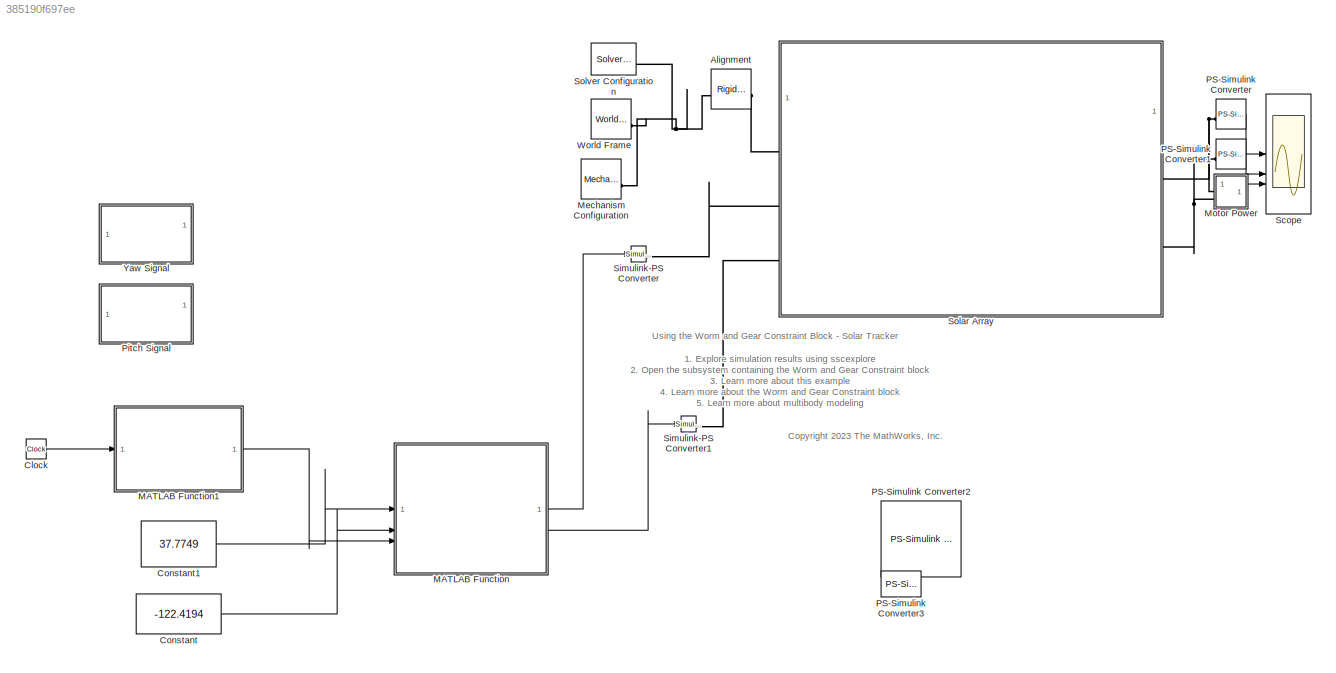
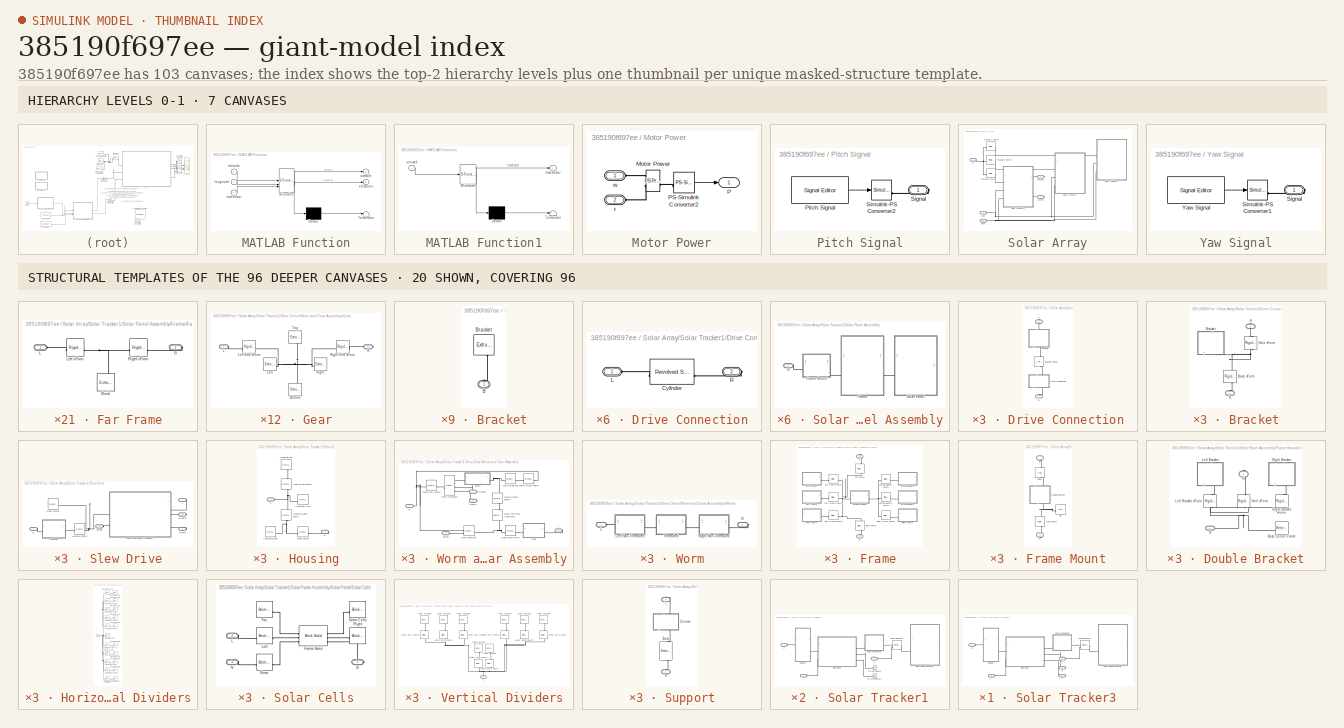
[diagram: thumbnail index - top-2 hierarchy levels (7 canvases) + 20 structural-template representatives of the remaining 96 canvases]
MODEL slx_385190f697ee
KIND model
CONFIG AbsTol = auto
CONFIG EnableMultiTasking = off
CONFIG FixedStep = auto
CONFIG MaxStep = 0.01
CONFIG MinStep = auto
CONFIG PreLoadFcn = addpath(fullfile('WormAndGearConstraintSupport','Data'));\naddpath(fullfile('WormAndGearConstraintSupport','Scripts'));
CONFIG RelTol = 1e-3
CONFIG SampleTimeConstraint = Unconstrained
CONFIG SolverName = ode45
CONFIG StartTime = 0.0
CONFIG StopTime = 20
WORKSPACE source: external: MATLAB File  (data not in archive)
BLOCK [Reference] Alignment  REF=sm_lib/Frames and
Transforms/Rigid
Transform
  SourceBlock = sm_lib/Frames and\nTransforms/Rigid\nTransform
  SourceType = Rigid\nTransform
BLOCK [Clock] Clock
BLOCK [Constant] Constant
  Value = -122.4194
BLOCK [Constant] Constant1
  Value = 37.7749
BLOCK [SubSystem] MATLAB Function
  ErrorFcn = Stateflow.Translate.translate
  PermitHierarchicalResolution = ExplicitOnly
  SFBlockType = MATLAB Function
  TreatAsAtomicUnit = on
BLOCK [Demux] MATLAB Function/ Demux 
  Outputs = 1
BLOCK [S-Function] MATLAB Function/ SFunction 
  EnableBusSupport = on
  FunctionName = sf_sfun
  PortCounts = [3 3]
  SFcnIsStateOwnerBlock = off
  SFunctionDeploymentMode = off
  Tag = Stateflow S-Function 2
BLOCK [Terminator] MATLAB Function/ Terminator 
BLOCK [Outport] MATLAB Function/azimuth
BLOCK [Outport] MATLAB Function/elevation
  Port = 2
BLOCK [Inport] MATLAB Function/latitude
BLOCK [Inport] MATLAB Function/longitude
  Port = 2
BLOCK [Inport] MATLAB Function/timeVector
  Port = 3
BLOCK [SubSystem] MATLAB Function1
  ErrorFcn = Stateflow.Translate.translate
  PermitHierarchicalResolution = ExplicitOnly
  SFBlockType = MATLAB Function
  TreatAsAtomicUnit = on
BLOCK [Demux] MATLAB Function1/ Demux 
  Outputs = 1
BLOCK [S-Function] MATLAB Function1/ SFunction 
  EnableBusSupport = on
  FunctionName = sf_sfun
  PortCounts = [1 2]
  SFcnIsStateOwnerBlock = off
  SFunctionDeploymentMode = off
  Tag = Stateflow S-Function 1
BLOCK [Terminator] MATLAB Function1/ Terminator 
BLOCK [Outport] MATLAB Function1/timeVector
BLOCK [Inport] MATLAB Function1/unused
BLOCK [Reference] Mechanism Configuration  REF=sm_lib/Utilities/Mechanism
Configuration
  SourceBlock = sm_lib/Utilities/Mechanism\nConfiguration
  SourceType = Mechanism\nConfiguration
BLOCK [SubSystem] Motor Power
BLOCK [Reference] Motor Power/Motor Power  REF=fl_ps_legacy_lib/Legacy Physical
Signals/Functions/PS Product
  SourceBlock = fl_ps_legacy_lib/Legacy Physical\nSignals/Functions/PS Product
  SourceType = PS Product
BLOCK [Outport] Motor Power/P
BLOCK [Reference] Motor Power/PS-Simulink Converter2  REF=nesl_utility/PS-Simulink
Converter
  SourceBlock = nesl_utility/PS-Simulink\nConverter
  SourceType = PS-Simulink\nConverter
BLOCK [PMIOPort] Motor Power/t
  Port = 2
  Side = Left
BLOCK [PMIOPort] Motor Power/w
  Side = Left
BLOCK [Reference] PS-Simulink Converter  REF=nesl_utility/PS-Simulink
Converter
  SourceBlock = nesl_utility/PS-Simulink\nConverter
  SourceType = PS-Simulink\nConverter
BLOCK [Reference] PS-Simulink Converter1  REF=nesl_utility/PS-Simulink
Converter
  SourceBlock = nesl_utility/PS-Simulink\nConverter
  SourceType = PS-Simulink\nConverter
BLOCK [Reference] PS-Simulink Converter2  REF=nesl_utility/PS-Simulink
Converter
  SourceBlock = nesl_utility/PS-Simulink\nConverter
  SourceType = PS-Simulink\nConverter
BLOCK [Reference] PS-Simulink Converter3  REF=nesl_utility/PS-Simulink
Converter
  SourceBlock = nesl_utility/PS-Simulink\nConverter
  SourceType = PS-Simulink\nConverter
BLOCK [SubSystem] Pitch Signal
  Commented = on
BLOCK [Reference] Pitch Signal/Pitch Signal  REF=SignalEditorBlockLib/Signal Editor
  SourceBlock = SignalEditorBlockLib/Signal Editor
  SourceType = SignalEditor
  UserDataPersistent = on
BLOCK [PMIOPort] Pitch Signal/Signal
  Side = Right
BLOCK [Reference] Pitch Signal/Simulink-PS Converter2  REF=nesl_utility/Simulink-PS
Converter
  SourceBlock = nesl_utility/Simulink-PS\nConverter
  SourceType = Simulink-PS\nConverter
BLOCK [Scope] Scope
  Floating = off
  NumInputPorts = 3
  ScopeSpecificationString = Simulink.scopes.TimeScopeBlockCfg('CurrentConfiguration', extmgr.ConfigurationSet(extmgr.Configuration('Core','General UI',true),extmgr.Configuration('Core','Source UI',true),extmgr.Configuration('Sources','WiredSimulink',true),extmgr.Configuration('Visuals','Time Domain',true,'SerializedDisplays',{struct('MinYLimReal','-1060.09614','MaxYLimReal','2617.78835','YLabelReal','','MinYLimMag','  0.0000...<+2794ch>
BLOCK [Reference] Simulink-PS Converter  REF=nesl_utility/Simulink-PS
Converter
  SourceBlock = nesl_utility/Simulink-PS\nConverter
  SourceType = Simulink-PS\nConverter
BLOCK [Reference] Simulink-PS Converter1  REF=nesl_utility/Simulink-PS
Converter
  SourceBlock = nesl_utility/Simulink-PS\nConverter
  SourceType = Simulink-PS\nConverter
BLOCK [SubSystem] Solar Array
BLOCK [SubSystem] Solar Array/Solar Tracker1
BLOCK [PMIOPort] Solar Array/Solar Tracker1/B
  Side = Left
BLOCK [SubSystem] Solar Array/Solar Tracker1/Drive Connection
  AncestorBlock = WormAndGearConstraintLibrary/Drive Connection
  LibrarySourceBlock = sm_solar_tracker_lib/Drive Connection
BLOCK [PMIOPort] Solar Array/Solar Tracker1/Drive Connection/B
  NameLocation = left
  Side = Left
BLOCK [SubSystem] Solar Array/Solar Tracker1/Drive Connection/Bracket
  AncestorBlock = WormAndGearConstraintLibrary/Single Bracket
  NameLocation = left
BLOCK [Reference] Solar Array/Solar Tracker1/Drive Connection/Bracket Base  REF=sm_lib/Body Elements/Cylindrical Solid
  NameLocation = left
  SourceBlock = sm_lib/Body Elements/Cylindrical Solid
  SourceType = Cylindrical Solid
BLOCK [PMIOPort] Solar Array/Solar Tracker1/Drive Connection/Bracket/B
  NameLocation = right
  Side = Left
BLOCK [Reference] Solar Array/Solar Tracker1/Drive Connection/Bracket/Base xForm  REF=sm_lib/Frames and
Transforms/Rigid
Transform
  NameLocation = left
  SourceBlock = sm_lib/Frames and\nTransforms/Rigid\nTransform
  SourceType = Rigid\nTransform
BLOCK [SubSystem] Solar Array/Solar Tracker1/Drive Connection/Bracket/Bracket
  AncestorBlock = WormAndGearConstraintLibrary/Bracket
  NameLocation = left
BLOCK [PMIOPort] Solar Array/Solar Tracker1/Drive Connection/Bracket/Bracket/B
  NameLocation = right
  Side = Left
BLOCK [Reference] Solar Array/Solar Tracker1/Drive Connection/Bracket/Bracket/Bracket  REF=sm_lib/Body Elements/Extruded Solid
  NameLocation = right
  SourceBlock = sm_lib/Body Elements/Extruded Solid
  SourceType = Extruded Solid
BLOCK [PMIOPort] Solar Array/Solar Tracker1/Drive Connection/Bracket/H
  NameLocation = right
  Port = 2
  Side = Right
BLOCK [Reference] Solar Array/Solar Tracker1/Drive Connection/Bracket/Hole xForm  REF=sm_lib/Frames and
Transforms/Rigid
Transform
  NameLocation = right
  SourceBlock = sm_lib/Frames and\nTransforms/Rigid\nTransform
  SourceType = Rigid\nTransform
BLOCK [SubSystem] Solar Array/Solar Tracker1/Drive Connection/Drive Connection
  AncestorBlock = WormAndGearConstraintLibrary/Hollow Cylinder
  NameLocation = left
BLOCK [Reference] Solar Array/Solar Tracker1/Drive Connection/Drive Connection/Cylinder  REF=sm_lib/Body Elements/Revolved Solid
  SourceBlock = sm_lib/Body Elements/Revolved Solid
  SourceType = Revolved Solid
BLOCK [PMIOPort] Solar Array/Solar Tracker1/Drive Connection/Drive Connection/L
  Side = Left
BLOCK [PMIOPort] Solar Array/Solar Tracker1/Drive Connection/Drive Connection/R
  Port = 2
  Side = Right
BLOCK [PMIOPort] Solar Array/Solar Tracker1/Drive Connection/H
  NameLocation = left
  Port = 2
  Side = Right
BLOCK [Reference] Solar Array/Solar Tracker1/PS Terminator  REF=fl_lib/Physical Signals/Sinks/PS Terminator
  SourceBlock = fl_lib/Physical Signals/Sinks/PS Terminator
  SourceType = PS Terminator
BLOCK [Reference] Solar Array/Solar Tracker1/PS Terminator1  REF=fl_lib/Physical Signals/Sinks/PS Terminator
  SourceBlock = fl_lib/Physical Signals/Sinks/PS Terminator
  SourceType = PS Terminator
BLOCK [Reference] Solar Array/Solar Tracker1/Panel Revolute  REF=sm_lib/Joints/Revolute Joint
  SourceBlock = sm_lib/Joints/Revolute Joint
  SourceType = Revolute Joint
BLOCK [SubSystem] Solar Array/Solar Tracker1/Slew Drive
  AncestorBlock = WormAndGearConstraintLibrary/Slew Drive
  LibrarySourceBlock = sm_solar_tracker_lib/Slew Drive
BLOCK [PMIOPort] Solar Array/Solar Tracker1/Slew Drive/B
  Side = Left
BLOCK [SubSystem] Solar Array/Solar Tracker1/Slew Drive/Housing
BLOCK [Reference] Solar Array/Solar Tracker1/Slew Drive/Housing xForm  REF=sm_lib/Frames and
Transforms/Rigid
Transform
  SourceBlock = sm_lib/Frames and\nTransforms/Rigid\nTransform
  SourceType = Rigid\nTransform
BLOCK [PMIOPort] Solar Array/Solar Tracker1/Slew Drive/Housing/B
  Port = 2
  Side = Right
BLOCK [Reference] Solar Array/Solar Tracker1/Slew Drive/Housing/Base xForm  REF=sm_lib/Frames and
Transforms/Rigid
Transform
  SourceBlock = sm_lib/Frames and\nTransforms/Rigid\nTransform
  SourceType = Rigid\nTransform
BLOCK [Reference] Solar Array/Solar Tracker1/Slew Drive/Housing/Housing Base  REF=sm_lib/Body Elements/Extruded Solid
  SourceBlock = sm_lib/Body Elements/Extruded Solid
  SourceType = Extruded Solid
BLOCK [Reference] Solar Array/Solar Tracker1/Slew Drive/Housing/Housing Base xForm  REF=sm_lib/Frames and
Transforms/Rigid
Transform
  NameLocation = left
  SourceBlock = sm_lib/Frames and\nTransforms/Rigid\nTransform
  SourceType = Rigid\nTransform
BLOCK [Reference] Solar Array/Solar Tracker1/Slew Drive/Housing/Housing Side  REF=sm_lib/Body Elements/Extruded Solid
  SourceBlock = sm_lib/Body Elements/Extruded Solid
  SourceType = Extruded Solid
BLOCK [Reference] Solar Array/Solar Tracker1/Slew Drive/Housing/Housing Top  REF=sm_lib/Body Elements/Extruded Solid
  NameLocation = left
  SourceBlock = sm_lib/Body Elements/Extruded Solid
  SourceType = Extruded Solid
BLOCK [Reference] Solar Array/Solar Tracker1/Slew Drive/Housing/Housing Top xForm  REF=sm_lib/Frames and
Transforms/Rigid
Transform
  NameLocation = left
  SourceBlock = sm_lib/Frames and\nTransforms/Rigid\nTransform
  SourceType = Rigid\nTransform
BLOCK [PMIOPort] Solar Array/Solar Tracker1/Slew Drive/Housing/S
  Side = Left
BLOCK [Reference] Solar Array/Solar Tracker1/Slew Drive/Root Frame  REF=sm_lib/Frames and
Transforms/Reference
Frame
  SourceBlock = sm_lib/Frames and\nTransforms/Reference\nFrame
  SourceType = Reference\nFrame
BLOCK [PMIOPort] Solar Array/Solar Tracker1/Slew Drive/T
  Port = 2
  Side = Right
BLOCK [SubSystem] Solar Array/Solar Tracker1/Slew Drive/Worm and Gear Assembly
BLOCK [SubSystem] Solar Array/Solar Tracker1/Slew Drive/Worm and Gear Assembly/Gear
  AncestorBlock = WormAndGearConstraintLibrary/Sliced Hollow Cylinder
BLOCK [Reference] Solar Array/Solar Tracker1/Slew Drive/Worm and Gear Assembly/Gear Base xForm  REF=sm_lib/Frames and
Transforms/Rigid
Transform
  SourceBlock = sm_lib/Frames and\nTransforms/Rigid\nTransform
  SourceType = Rigid\nTransform
BLOCK [Reference] Solar Array/Solar Tracker1/Slew Drive/Worm and Gear Assembly/Gear Revolute  REF=sm_lib/Joints/Revolute Joint
  SourceBlock = sm_lib/Joints/Revolute Joint
  SourceType = Revolute Joint
BLOCK [Reference] Solar Array/Solar Tracker1/Slew Drive/Worm and Gear Assembly/Gear/Bottom  REF=sm_lib/Body Elements/Extruded Solid
  NameLocation = left
  SourceBlock = sm_lib/Body Elements/Extruded Solid
  SourceType = Extruded Solid
BLOCK [PMIOPort] Solar Array/Solar Tracker1/Slew Drive/Worm and Gear Assembly/Gear/L
  Side = Left
BLOCK [Reference] Solar Array/Solar Tracker1/Slew Drive/Worm and Gear Assembly/Gear/Left  REF=sm_lib/Body Elements/Extruded Solid
  SourceBlock = sm_lib/Body Elements/Extruded Solid
  SourceType = Extruded Solid
BLOCK [Reference] Solar Array/Solar Tracker1/Slew Drive/Worm and Gear Assembly/Gear/Left End xForm  REF=sm_lib/Frames and
Transforms/Rigid
Transform
  SourceBlock = sm_lib/Frames and\nTransforms/Rigid\nTransform
  SourceType = Rigid\nTransform
BLOCK [PMIOPort] Solar Array/Solar Tracker1/Slew Drive/Worm and Gear Assembly/Gear/R
  Port = 2
  Side = Right
BLOCK [Reference] Solar Array/Solar Tracker1/Slew Drive/Worm and Gear Assembly/Gear/Right  REF=sm_lib/Body Elements/Extruded Solid
  SourceBlock = sm_lib/Body Elements/Extruded Solid
  SourceType = Extruded Solid
BLOCK [Reference] Solar Array/Solar Tracker1/Slew Drive/Worm and Gear Assembly/Gear/Right End xForm  REF=sm_lib/Frames and
Transforms/Rigid
Transform
  SourceBlock = sm_lib/Frames and\nTransforms/Rigid\nTransform
  SourceType = Rigid\nTransform
BLOCK [Reference] Solar Array/Solar Tracker1/Slew Drive/Worm and Gear Assembly/Gear/Top  REF=sm_lib/Body Elements/Extruded Solid
  NameLocation = left
  SourceBlock = sm_lib/Body Elements/Extruded Solid
  SourceType = Extruded Solid
BLOCK [PMIOPort] Solar Array/Solar Tracker1/Slew Drive/Worm and Gear Assembly/R
  Side = Left
BLOCK [PMIOPort] Solar Array/Solar Tracker1/Slew Drive/Worm and Gear Assembly/T
  Port = 2
  Side = Right
BLOCK [SubSystem] Solar Array/Solar Tracker1/Slew Drive/Worm and Gear Assembly/Worm
BLOCK [Reference] Solar Array/Solar Tracker1/Slew Drive/Worm and Gear Assembly/Worm Bearing  REF=sm_lib/Joints/Bearing Joint
  SourceBlock = sm_lib/Joints/Bearing Joint
  SourceType = Bearing Joint
BLOCK [Reference] Solar Array/Solar Tracker1/Slew Drive/Worm and Gear Assembly/Worm Center xForm  REF=sm_lib/Frames and
Transforms/Rigid
Transform
  NameLocation = right
  SourceBlock = sm_lib/Frames and\nTransforms/Rigid\nTransform
  SourceType = Rigid\nTransform
BLOCK [Reference] Solar Array/Solar Tracker1/Slew Drive/Worm and Gear Assembly/Worm Left xForm  REF=sm_lib/Frames and
Transforms/Rigid
Transform
  SourceBlock = sm_lib/Frames and\nTransforms/Rigid\nTransform
  SourceType = Rigid\nTransform
BLOCK [Reference] Solar Array/Solar Tracker1/Slew Drive/Worm and Gear Assembly/Worm Revolute  REF=sm_lib/Joints/Revolute Joint
  SourceBlock = sm_lib/Joints/Revolute Joint
  SourceType = Revolute Joint
BLOCK [Reference] Solar Array/Solar Tracker1/Slew Drive/Worm and Gear Assembly/Worm Right xForm  REF=sm_lib/Frames and
Transforms/Rigid
Transform
  SourceBlock = sm_lib/Frames and\nTransforms/Rigid\nTransform
  SourceType = Rigid\nTransform
BLOCK [Reference] Solar Array/Solar Tracker1/Slew Drive/Worm and Gear Assembly/Worm and Gear Constraint  REF=sm_lib/Gears and
Couplings/Gears/Worm and Gear
Constraint
  NameLocation = right
  SourceBlock = sm_lib/Gears and\nCouplings/Gears/Worm and Gear\nConstraint
  SourceType = Worm and Gear\nConstraint
BLOCK [PMIOPort] Solar Array/Solar Tracker1/Slew Drive/Worm and Gear Assembly/Worm/L
  Side = Left
BLOCK [SubSystem] Solar Array/Solar Tracker1/Slew Drive/Worm and Gear Assembly/Worm/Left Non-Threaded
  AncestorBlock = WormAndGearConstraintLibrary/Sliced Hollow Cylinder
BLOCK [Reference] Solar Array/Solar Tracker1/Slew Drive/Worm and Gear Assembly/Worm/Left Non-Threaded/Bottom  REF=sm_lib/Body Elements/Extruded Solid
  NameLocation = left
  SourceBlock = sm_lib/Body Elements/Extruded Solid
  SourceType = Extruded Solid
BLOCK [PMIOPort] Solar Array/Solar Tracker1/Slew Drive/Worm and Gear Assembly/Worm/Left Non-Threaded/L
  Side = Left
BLOCK [Reference] Solar Array/Solar Tracker1/Slew Drive/Worm and Gear Assembly/Worm/Left Non-Threaded/Left  REF=sm_lib/Body Elements/Extruded Solid
  SourceBlock = sm_lib/Body Elements/Extruded Solid
  SourceType = Extruded Solid
BLOCK [Reference] Solar Array/Solar Tracker1/Slew Drive/Worm and Gear Assembly/Worm/Left Non-Threaded/Left End xForm  REF=sm_lib/Frames and
Transforms/Rigid
Transform
  SourceBlock = sm_lib/Frames and\nTransforms/Rigid\nTransform
  SourceType = Rigid\nTransform
BLOCK [PMIOPort] Solar Array/Solar Tracker1/Slew Drive/Worm and Gear Assembly/Worm/Left Non-Threaded/R
  Port = 2
  Side = Right
BLOCK [Reference] Solar Array/Solar Tracker1/Slew Drive/Worm and Gear Assembly/Worm/Left Non-Threaded/Right  REF=sm_lib/Body Elements/Extruded Solid
  SourceBlock = sm_lib/Body Elements/Extruded Solid
  SourceType = Extruded Solid
BLOCK [Reference] Solar Array/Solar Tracker1/Slew Drive/Worm and Gear Assembly/Worm/Left Non-Threaded/Right End xForm  REF=sm_lib/Frames and
Transforms/Rigid
Transform
  SourceBlock = sm_lib/Frames and\nTransforms/Rigid\nTransform
  SourceType = Rigid\nTransform
BLOCK [Reference] Solar Array/Solar Tracker1/Slew Drive/Worm and Gear Assembly/Worm/Left Non-Threaded/Top  REF=sm_lib/Body Elements/Extruded Solid
  NameLocation = left
  SourceBlock = sm_lib/Body Elements/Extruded Solid
  SourceType = Extruded Solid
BLOCK [PMIOPort] Solar Array/Solar Tracker1/Slew Drive/Worm and Gear Assembly/Worm/R
  Port = 2
  Side = Right
BLOCK [SubSystem] Solar Array/Solar Tracker1/Slew Drive/Worm and Gear Assembly/Worm/Right Non-Threaded
  AncestorBlock = WormAndGearConstraintLibrary/Sliced Hollow Cylinder
BLOCK [Reference] Solar Array/Solar Tracker1/Slew Drive/Worm and Gear Assembly/Worm/Right Non-Threaded/Bottom  REF=sm_lib/Body Elements/Extruded Solid
  NameLocation = left
  SourceBlock = sm_lib/Body Elements/Extruded Solid
  SourceType = Extruded Solid
BLOCK [PMIOPort] Solar Array/Solar Tracker1/Slew Drive/Worm and Gear Assembly/Worm/Right Non-Threaded/L
  Side = Left
BLOCK [Reference] Solar Array/Solar Tracker1/Slew Drive/Worm and Gear Assembly/Worm/Right Non-Threaded/Left  REF=sm_lib/Body Elements/Extruded Solid
  SourceBlock = sm_lib/Body Elements/Extruded Solid
  SourceType = Extruded Solid
BLOCK [Reference] Solar Array/Solar Tracker1/Slew Drive/Worm and Gear Assembly/Worm/Right Non-Threaded/Left End xForm  REF=sm_lib/Frames and
Transforms/Rigid
Transform
  SourceBlock = sm_lib/Frames and\nTransforms/Rigid\nTransform
  SourceType = Rigid\nTransform
BLOCK [PMIOPort] Solar Array/Solar Tracker1/Slew Drive/Worm and Gear Assembly/Worm/Right Non-Threaded/R
  Port = 2
  Side = Right
BLOCK [Reference] Solar Array/Solar Tracker1/Slew Drive/Worm and Gear Assembly/Worm/Right Non-Threaded/Right  REF=sm_lib/Body Elements/Extruded Solid
  SourceBlock = sm_lib/Body Elements/Extruded Solid
  SourceType = Extruded Solid
BLOCK [Reference] Solar Array/Solar Tracker1/Slew Drive/Worm and Gear Assembly/Worm/Right Non-Threaded/Right End xForm  REF=sm_lib/Frames and
Transforms/Rigid
Transform
  SourceBlock = sm_lib/Frames and\nTransforms/Rigid\nTransform
  SourceType = Rigid\nTransform
BLOCK [Reference] Solar Array/Solar Tracker1/Slew Drive/Worm and Gear Assembly/Worm/Right Non-Threaded/Top  REF=sm_lib/Body Elements/Extruded Solid
  NameLocation = left
  SourceBlock = sm_lib/Body Elements/Extruded Solid
  SourceType = Extruded Solid
BLOCK [SubSystem] Solar Array/Solar Tracker1/Slew Drive/Worm and Gear Assembly/Worm/Threaded
  AncestorBlock = WormAndGearConstraintLibrary/Sliced Hollow Cylinder
BLOCK [Reference] Solar Array/Solar Tracker1/Slew Drive/Worm and Gear Assembly/Worm/Threaded/Bottom  REF=sm_lib/Body Elements/Extruded Solid
  NameLocation = left
  SourceBlock = sm_lib/Body Elements/Extruded Solid
  SourceType = Extruded Solid
BLOCK [PMIOPort] Solar Array/Solar Tracker1/Slew Drive/Worm and Gear Assembly/Worm/Threaded/L
  Side = Left
BLOCK [Reference] Solar Array/Solar Tracker1/Slew Drive/Worm and Gear Assembly/Worm/Threaded/Left  REF=sm_lib/Body Elements/Extruded Solid
  SourceBlock = sm_lib/Body Elements/Extruded Solid
  SourceType = Extruded Solid
BLOCK [Reference] Solar Array/Solar Tracker1/Slew Drive/Worm and Gear Assembly/Worm/Threaded/Left End xForm  REF=sm_lib/Frames and
Transforms/Rigid
Transform
  SourceBlock = sm_lib/Frames and\nTransforms/Rigid\nTransform
  SourceType = Rigid\nTransform
BLOCK [PMIOPort] Solar Array/Solar Tracker1/Slew Drive/Worm and Gear Assembly/Worm/Threaded/R
  Port = 2
  Side = Right
BLOCK [Reference] Solar Array/Solar Tracker1/Slew Drive/Worm and Gear Assembly/Worm/Threaded/Right  REF=sm_lib/Body Elements/Extruded Solid
  SourceBlock = sm_lib/Body Elements/Extruded Solid
  SourceType = Extruded Solid
BLOCK [Reference] Solar Array/Solar Tracker1/Slew Drive/Worm and Gear Assembly/Worm/Threaded/Right End xForm  REF=sm_lib/Frames and
Transforms/Rigid
Transform
  SourceBlock = sm_lib/Frames and\nTransforms/Rigid\nTransform
  SourceType = Rigid\nTransform
BLOCK [Reference] Solar Array/Solar Tracker1/Slew Drive/Worm and Gear Assembly/Worm/Threaded/Top  REF=sm_lib/Body Elements/Extruded Solid
  NameLocation = left
  SourceBlock = sm_lib/Body Elements/Extruded Solid
  SourceType = Extruded Solid
BLOCK [PMIOPort] Solar Array/Solar Tracker1/Slew Drive/Worm and Gear Assembly/qGear
  Port = 3
  Side = Left
BLOCK [PMIOPort] Solar Array/Solar Tracker1/Slew Drive/Worm and Gear Assembly/tWorm
  Port = 5
  Side = Right
BLOCK [PMIOPort] Solar Array/Solar Tracker1/Slew Drive/Worm and Gear Assembly/wWorm
  Port = 4
  Side = Right
BLOCK [PMIOPort] Solar Array/Solar Tracker1/Slew Drive/qGear
  Port = 3
  Side = Left
BLOCK [PMIOPort] Solar Array/Solar Tracker1/Slew Drive/tWorm
  Port = 5
  Side = Right
BLOCK [PMIOPort] Solar Array/Solar Tracker1/Slew Drive/wWorm
  Port = 4
  Side = Right
BLOCK [SubSystem] Solar Array/Solar Tracker1/Solar Panel Assembly
BLOCK [SubSystem] Solar Array/Solar Tracker1/Solar Panel Assembly/Frame
  AncestorBlock = WormAndGearConstraintLibrary/Frame
  LibrarySourceBlock = sm_solar_tracker_lib/Frame
BLOCK [SubSystem] Solar Array/Solar Tracker1/Solar Panel Assembly/Frame Mount
  AncestorBlock = WormAndGearConstraintLibrary/Frame Mount
  LibrarySourceBlock = sm_solar_tracker_lib/Frame Mount
BLOCK [PMIOPort] Solar Array/Solar Tracker1/Solar Panel Assembly/Frame Mount/B
  NameLocation = left
  Side = Left
BLOCK [Reference] Solar Array/Solar Tracker1/Solar Panel Assembly/Frame Mount/Base  REF=sm_lib/Body Elements/Cylindrical Solid
  NameLocation = left
  SourceBlock = sm_lib/Body Elements/Cylindrical Solid
  SourceType = Cylindrical Solid
BLOCK [SubSystem] Solar Array/Solar Tracker1/Solar Panel Assembly/Frame Mount/Double Bracket
  AncestorBlock = WormAndGearConstraintLibrary/Double Bracket
  NameLocation = left
BLOCK [PMIOPort] Solar Array/Solar Tracker1/Solar Panel Assembly/Frame Mount/Double Bracket/B
  Side = Left
BLOCK [Reference] Solar Array/Solar Tracker1/Solar Panel Assembly/Frame Mount/Double Bracket/Base Center Frame  REF=sm_lib/Frames and
Transforms/Reference
Frame
  SourceBlock = sm_lib/Frames and\nTransforms/Reference\nFrame
  SourceType = Reference\nFrame
BLOCK [PMIOPort] Solar Array/Solar Tracker1/Solar Panel Assembly/Frame Mount/Double Bracket/H
  NameLocation = right
  Port = 2
  Side = Right
BLOCK [Reference] Solar Array/Solar Tracker1/Solar Panel Assembly/Frame Mount/Double Bracket/Hole xForm  REF=sm_lib/Frames and
Transforms/Rigid
Transform
  NameLocation = right
  SourceBlock = sm_lib/Frames and\nTransforms/Rigid\nTransform
  SourceType = Rigid\nTransform
BLOCK [SubSystem] Solar Array/Solar Tracker1/Solar Panel Assembly/Frame Mount/Double Bracket/Left Bracket
  AncestorBlock = WormAndGearConstraintLibrary/Bracket
  NameLocation = left
BLOCK [Reference] Solar Array/Solar Tracker1/Solar Panel Assembly/Frame Mount/Double Bracket/Left Bracket xForm  REF=sm_lib/Frames and
Transforms/Rigid
Transform
  NameLocation = left
  SourceBlock = sm_lib/Frames and\nTransforms/Rigid\nTransform
  SourceType = Rigid\nTransform
BLOCK [PMIOPort] Solar Array/Solar Tracker1/Solar Panel Assembly/Frame Mount/Double Bracket/Left Bracket/B
  NameLocation = right
  Side = Left
BLOCK [Reference] Solar Array/Solar Tracker1/Solar Panel Assembly/Frame Mount/Double Bracket/Left Bracket/Bracket  REF=sm_lib/Body Elements/Extruded Solid
  NameLocation = right
  SourceBlock = sm_lib/Body Elements/Extruded Solid
  SourceType = Extruded Solid
BLOCK [SubSystem] Solar Array/Solar Tracker1/Solar Panel Assembly/Frame Mount/Double Bracket/Right Bracket
  AncestorBlock = WormAndGearConstraintLibrary/Bracket
  NameLocation = right
BLOCK [Reference] Solar Array/Solar Tracker1/Solar Panel Assembly/Frame Mount/Double Bracket/Right Bracket xForm  REF=sm_lib/Frames and
Transforms/Rigid
Transform
  NameLocation = right
  SourceBlock = sm_lib/Frames and\nTransforms/Rigid\nTransform
  SourceType = Rigid\nTransform
BLOCK [PMIOPort] Solar Array/Solar Tracker1/Solar Panel Assembly/Frame Mount/Double Bracket/Right Bracket/B
  NameLocation = right
  Side = Left
BLOCK [Reference] Solar Array/Solar Tracker1/Solar Panel Assembly/Frame Mount/Double Bracket/Right Bracket/Bracket  REF=sm_lib/Body Elements/Extruded Solid
  NameLocation = right
  SourceBlock = sm_lib/Body Elements/Extruded Solid
  SourceType = Extruded Solid
BLOCK [PMIOPort] Solar Array/Solar Tracker1/Solar Panel Assembly/Frame Mount/H
  NameLocation = left
  Port = 2
  Side = Right
BLOCK [Reference] Solar Array/Solar Tracker1/Solar Panel Assembly/Frame Mount/Hole xForm  REF=sm_lib/Frames and
Transforms/Rigid
Transform
  NameLocation = left
  SourceBlock = sm_lib/Frames and\nTransforms/Rigid\nTransform
  SourceType = Rigid\nTransform
BLOCK [Reference] Solar Array/Solar Tracker1/Solar Panel Assembly/Frame Mount/Pin  REF=sm_lib/Body Elements/Cylindrical Solid
  SourceBlock = sm_lib/Body Elements/Cylindrical Solid
  SourceType = Cylindrical Solid
BLOCK [PMIOPort] Solar Array/Solar Tracker1/Solar Panel Assembly/Frame/B
  NameLocation = right
  Side = Left
BLOCK [Reference] Solar Array/Solar Tracker1/Solar Panel Assembly/Frame/Base xForm  REF=sm_lib/Frames and
Transforms/Rigid
Transform
  NameLocation = left
  SourceBlock = sm_lib/Frames and\nTransforms/Rigid\nTransform
  SourceType = Rigid\nTransform
BLOCK [SubSystem] Solar Array/Solar Tracker1/Solar Panel Assembly/Frame/Far Frame
  AncestorBlock = WormAndGearConstraintLibrary/Hollow Brick
BLOCK [Reference] Solar Array/Solar Tracker1/Solar Panel Assembly/Frame/Far Frame xForm  REF=sm_lib/Frames and
Transforms/Rigid
Transform
  SourceBlock = sm_lib/Frames and\nTransforms/Rigid\nTransform
  SourceType = Rigid\nTransform
BLOCK [Reference] Solar Array/Solar Tracker1/Solar Panel Assembly/Frame/Far Frame/Brick  REF=sm_lib/Body Elements/Extruded Solid
  NameLocation = right
  SourceBlock = sm_lib/Body Elements/Extruded Solid
  SourceType = Extruded Solid
BLOCK [PMIOPort] Solar Array/Solar Tracker1/Solar Panel Assembly/Frame/Far Frame/L
  Side = Left
BLOCK [Reference] Solar Array/Solar Tracker1/Solar Panel Assembly/Frame/Far Frame/Left xForm  REF=sm_lib/Frames and
Transforms/Rigid
Transform
  SourceBlock = sm_lib/Frames and\nTransforms/Rigid\nTransform
  SourceType = Rigid\nTransform
BLOCK [PMIOPort] Solar Array/Solar Tracker1/Solar Panel Assembly/Frame/Far Frame/R
  Port = 2
  Side = Right
BLOCK [Reference] Solar Array/Solar Tracker1/Solar Panel Assembly/Frame/Far Frame/Right xForm  REF=sm_lib/Frames and
Transforms/Rigid
Transform
  SourceBlock = sm_lib/Frames and\nTransforms/Rigid\nTransform
  SourceType = Rigid\nTransform
BLOCK [SubSystem] Solar Array/Solar Tracker1/Solar Panel Assembly/Frame/Horizontal Beam
  AncestorBlock = WormAndGearConstraintLibrary/Hollow Brick
BLOCK [Reference] Solar Array/Solar Tracker1/Solar Panel Assembly/Frame/Horizontal Beam/Brick  REF=sm_lib/Body Elements/Extruded Solid
  NameLocation = right
  SourceBlock = sm_lib/Body Elements/Extruded Solid
  SourceType = Extruded Solid
BLOCK [PMIOPort] Solar Array/Solar Tracker1/Solar Panel Assembly/Frame/Horizontal Beam/L
  Side = Left
BLOCK [Reference] Solar Array/Solar Tracker1/Solar Panel Assembly/Frame/Horizontal Beam/Left xForm  REF=sm_lib/Frames and
Transforms/Rigid
Transform
  SourceBlock = sm_lib/Frames and\nTransforms/Rigid\nTransform
  SourceType = Rigid\nTransform
BLOCK [PMIOPort] Solar Array/Solar Tracker1/Solar Panel Assembly/Frame/Horizontal Beam/R
  Port = 2
  Side = Right
BLOCK [Reference] Solar Array/Solar Tracker1/Solar Panel Assembly/Frame/Horizontal Beam/Right xForm  REF=sm_lib/Frames and
Transforms/Rigid
Transform
  SourceBlock = sm_lib/Frames and\nTransforms/Rigid\nTransform
  SourceType = Rigid\nTransform
BLOCK [SubSystem] Solar Array/Solar Tracker1/Solar Panel Assembly/Frame/Left Frame
  AncestorBlock = WormAndGearConstraintLibrary/Hollow Brick
BLOCK [Reference] Solar Array/Solar Tracker1/Solar Panel Assembly/Frame/Left Frame xForm  REF=sm_lib/Frames and
Transforms/Rigid
Transform
  SourceBlock = sm_lib/Frames and\nTransforms/Rigid\nTransform
  SourceType = Rigid\nTransform
BLOCK [Reference] Solar Array/Solar Tracker1/Solar Panel Assembly/Frame/Left Frame/Brick  REF=sm_lib/Body Elements/Extruded Solid
  NameLocation = right
  SourceBlock = sm_lib/Body Elements/Extruded Solid
  SourceType = Extruded Solid
BLOCK [PMIOPort] Solar Array/Solar Tracker1/Solar Panel Assembly/Frame/Left Frame/L
  Side = Left
BLOCK [Reference] Solar Array/Solar Tracker1/Solar Panel Assembly/Frame/Left Frame/Left xForm  REF=sm_lib/Frames and
Transforms/Rigid
Transform
  SourceBlock = sm_lib/Frames and\nTransforms/Rigid\nTransform
  SourceType = Rigid\nTransform
BLOCK [PMIOPort] Solar Array/Solar Tracker1/Solar Panel Assembly/Frame/Left Frame/R
  Port = 2
  Side = Right
BLOCK [Reference] Solar Array/Solar Tracker1/Solar Panel Assembly/Frame/Left Frame/Right xForm  REF=sm_lib/Frames and
Transforms/Rigid
Transform
  SourceBlock = sm_lib/Frames and\nTransforms/Rigid\nTransform
  SourceType = Rigid\nTransform
BLOCK [SubSystem] Solar Array/Solar Tracker1/Solar Panel Assembly/Frame/Near Frame
  AncestorBlock = WormAndGearConstraintLibrary/Hollow Brick
BLOCK [Reference] Solar Array/Solar Tracker1/Solar Panel Assembly/Frame/Near Frame xForm  REF=sm_lib/Frames and
Transforms/Rigid
Transform
  SourceBlock = sm_lib/Frames and\nTransforms/Rigid\nTransform
  SourceType = Rigid\nTransform
BLOCK [Reference] Solar Array/Solar Tracker1/Solar Panel Assembly/Frame/Near Frame/Brick  REF=sm_lib/Body Elements/Extruded Solid
  NameLocation = right
  SourceBlock = sm_lib/Body Elements/Extruded Solid
  SourceType = Extruded Solid
BLOCK [PMIOPort] Solar Array/Solar Tracker1/Solar Panel Assembly/Frame/Near Frame/L
  Side = Left
BLOCK [Reference] Solar Array/Solar Tracker1/Solar Panel Assembly/Frame/Near Frame/Left xForm  REF=sm_lib/Frames and
Transforms/Rigid
Transform
  SourceBlock = sm_lib/Frames and\nTransforms/Rigid\nTransform
  SourceType = Rigid\nTransform
BLOCK [PMIOPort] Solar Array/Solar Tracker1/Solar Panel Assembly/Frame/Near Frame/R
  Port = 2
  Side = Right
BLOCK [Reference] Solar Array/Solar Tracker1/Solar Panel Assembly/Frame/Near Frame/Right xForm  REF=sm_lib/Frames and
Transforms/Rigid
Transform
  SourceBlock = sm_lib/Frames and\nTransforms/Rigid\nTransform
  SourceType = Rigid\nTransform
BLOCK [SubSystem] Solar Array/Solar Tracker1/Solar Panel Assembly/Frame/Right Frame
  AncestorBlock = WormAndGearConstraintLibrary/Hollow Brick
BLOCK [Reference] Solar Array/Solar Tracker1/Solar Panel Assembly/Frame/Right Frame xForm  REF=sm_lib/Frames and
Transforms/Rigid
Transform
  SourceBlock = sm_lib/Frames and\nTransforms/Rigid\nTransform
  SourceType = Rigid\nTransform
BLOCK [Reference] Solar Array/Solar Tracker1/Solar Panel Assembly/Frame/Right Frame/Brick  REF=sm_lib/Body Elements/Extruded Solid
  NameLocation = right
  SourceBlock = sm_lib/Body Elements/Extruded Solid
  SourceType = Extruded Solid
BLOCK [PMIOPort] Solar Array/Solar Tracker1/Solar Panel Assembly/Frame/Right Frame/L
  Side = Left
BLOCK [Reference] Solar Array/Solar Tracker1/Solar Panel Assembly/Frame/Right Frame/Left xForm  REF=sm_lib/Frames and
Transforms/Rigid
Transform
  SourceBlock = sm_lib/Frames and\nTransforms/Rigid\nTransform
  SourceType = Rigid\nTransform
BLOCK [PMIOPort] Solar Array/Solar Tracker1/Solar Panel Assembly/Frame/Right Frame/R
  Port = 2
  Side = Right
BLOCK [Reference] Solar Array/Solar Tracker1/Solar Panel Assembly/Frame/Right Frame/Right xForm  REF=sm_lib/Frames and
Transforms/Rigid
Transform
  SourceBlock = sm_lib/Frames and\nTransforms/Rigid\nTransform
  SourceType = Rigid\nTransform
BLOCK [PMIOPort] Solar Array/Solar Tracker1/Solar Panel Assembly/Frame/T
  NameLocation = left
  Port = 2
  Side = Right
BLOCK [Reference] Solar Array/Solar Tracker1/Solar Panel Assembly/Frame/Top xForm  REF=sm_lib/Frames and
Transforms/Rigid
Transform
  NameLocation = left
  SourceBlock = sm_lib/Frames and\nTransforms/Rigid\nTransform
  SourceType = Rigid\nTransform
BLOCK [SubSystem] Solar Array/Solar Tracker1/Solar Panel Assembly/Frame/Vertical Beam1
  AncestorBlock = WormAndGearConstraintLibrary/Hollow Brick
BLOCK [Reference] Solar Array/Solar Tracker1/Solar Panel Assembly/Frame/Vertical Beam1 xForm  REF=sm_lib/Frames and
Transforms/Rigid
Transform
  SourceBlock = sm_lib/Frames and\nTransforms/Rigid\nTransform
  SourceType = Rigid\nTransform
BLOCK [Reference] Solar Array/Solar Tracker1/Solar Panel Assembly/Frame/Vertical Beam1/Brick  REF=sm_lib/Body Elements/Extruded Solid
  NameLocation = right
  SourceBlock = sm_lib/Body Elements/Extruded Solid
  SourceType = Extruded Solid
BLOCK [PMIOPort] Solar Array/Solar Tracker1/Solar Panel Assembly/Frame/Vertical Beam1/L
  Side = Left
BLOCK [Reference] Solar Array/Solar Tracker1/Solar Panel Assembly/Frame/Vertical Beam1/Left xForm  REF=sm_lib/Frames and
Transforms/Rigid
Transform
  SourceBlock = sm_lib/Frames and\nTransforms/Rigid\nTransform
  SourceType = Rigid\nTransform
BLOCK [PMIOPort] Solar Array/Solar Tracker1/Solar Panel Assembly/Frame/Vertical Beam1/R
  Port = 2
  Side = Right
BLOCK [Reference] Solar Array/Solar Tracker1/Solar Panel Assembly/Frame/Vertical Beam1/Right xForm  REF=sm_lib/Frames and
Transforms/Rigid
Transform
  SourceBlock = sm_lib/Frames and\nTransforms/Rigid\nTransform
  SourceType = Rigid\nTransform
BLOCK [SubSystem] Solar Array/Solar Tracker1/Solar Panel Assembly/Frame/Vertical Beam2
  AncestorBlock = WormAndGearConstraintLibrary/Hollow Brick
BLOCK [Reference] Solar Array/Solar Tracker1/Solar Panel Assembly/Frame/Vertical Beam2 xForm  REF=sm_lib/Frames and
Transforms/Rigid
Transform
  SourceBlock = sm_lib/Frames and\nTransforms/Rigid\nTransform
  SourceType = Rigid\nTransform
BLOCK [Reference] Solar Array/Solar Tracker1/Solar Panel Assembly/Frame/Vertical Beam2/Brick  REF=sm_lib/Body Elements/Extruded Solid
  NameLocation = right
  SourceBlock = sm_lib/Body Elements/Extruded Solid
  SourceType = Extruded Solid
BLOCK [PMIOPort] Solar Array/Solar Tracker1/Solar Panel Assembly/Frame/Vertical Beam2/L
  Side = Left
BLOCK [Reference] Solar Array/Solar Tracker1/Solar Panel Assembly/Frame/Vertical Beam2/Left xForm  REF=sm_lib/Frames and
Transforms/Rigid
Transform
  SourceBlock = sm_lib/Frames and\nTransforms/Rigid\nTransform
  SourceType = Rigid\nTransform
BLOCK [PMIOPort] Solar Array/Solar Tracker1/Solar Panel Assembly/Frame/Vertical Beam2/R
  Port = 2
  Side = Right
BLOCK [Reference] Solar Array/Solar Tracker1/Solar Panel Assembly/Frame/Vertical Beam2/Right xForm  REF=sm_lib/Frames and
Transforms/Rigid
Transform
  SourceBlock = sm_lib/Frames and\nTransforms/Rigid\nTransform
  SourceType = Rigid\nTransform
BLOCK [PMIOPort] Solar Array/Solar Tracker1/Solar Panel Assembly/H
  Side = Left
BLOCK [SubSystem] Solar Array/Solar Tracker1/Solar Panel Assembly/Solar Panel
  AncestorBlock = WormAndGearConstraintLibrary/Solar Panel
  LibrarySourceBlock = sm_solar_tracker_lib/Solar Panel
BLOCK [PMIOPort] Solar Array/Solar Tracker1/Solar Panel Assembly/Solar Panel/B
  NameLocation = right
  Side = Left
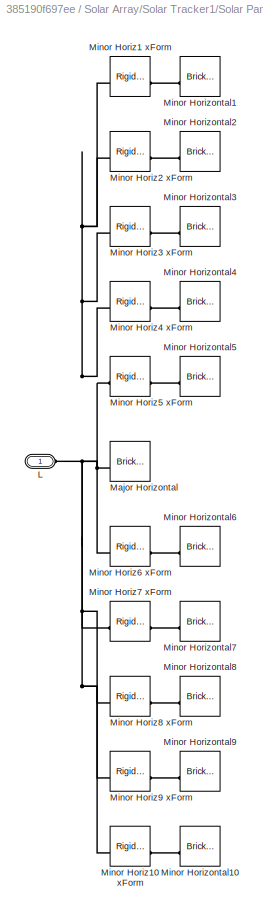
BLOCK [SubSystem] Solar Array/Solar Tracker1/Solar Panel Assembly/Solar Panel/Horizontal Dividers
BLOCK [PMIOPort] Solar Array/Solar Tracker1/Solar Panel Assembly/Solar Panel/Horizontal Dividers/L
  Side = Left
BLOCK [Reference] Solar Array/Solar Tracker1/Solar Panel Assembly/Solar Panel/Horizontal Dividers/Major Horizontal  REF=sm_lib/Body Elements/Brick Solid
  SourceBlock = sm_lib/Body Elements/Brick Solid
  SourceType = Brick Solid
BLOCK [Reference] Solar Array/Solar Tracker1/Solar Panel Assembly/Solar Panel/Horizontal Dividers/Minor Horiz1 xForm  REF=sm_lib/Frames and
Transforms/Rigid
Transform
  SourceBlock = sm_lib/Frames and\nTransforms/Rigid\nTransform
  SourceType = Rigid\nTransform
BLOCK [Reference] Solar Array/Solar Tracker1/Solar Panel Assembly/Solar Panel/Horizontal Dividers/Minor Horiz10 xForm  REF=sm_lib/Frames and
Transforms/Rigid
Transform
  SourceBlock = sm_lib/Frames and\nTransforms/Rigid\nTransform
  SourceType = Rigid\nTransform
BLOCK [Reference] Solar Array/Solar Tracker1/Solar Panel Assembly/Solar Panel/Horizontal Dividers/Minor Horiz2 xForm  REF=sm_lib/Frames and
Transforms/Rigid
Transform
  SourceBlock = sm_lib/Frames and\nTransforms/Rigid\nTransform
  SourceType = Rigid\nTransform
BLOCK [Reference] Solar Array/Solar Tracker1/Solar Panel Assembly/Solar Panel/Horizontal Dividers/Minor Horiz3 xForm  REF=sm_lib/Frames and
Transforms/Rigid
Transform
  SourceBlock = sm_lib/Frames and\nTransforms/Rigid\nTransform
  SourceType = Rigid\nTransform
BLOCK [Reference] Solar Array/Solar Tracker1/Solar Panel Assembly/Solar Panel/Horizontal Dividers/Minor Horiz4 xForm  REF=sm_lib/Frames and
Transforms/Rigid
Transform
  SourceBlock = sm_lib/Frames and\nTransforms/Rigid\nTransform
  SourceType = Rigid\nTransform
BLOCK [Reference] Solar Array/Solar Tracker1/Solar Panel Assembly/Solar Panel/Horizontal Dividers/Minor Horiz5 xForm  REF=sm_lib/Frames and
Transforms/Rigid
Transform
  SourceBlock = sm_lib/Frames and\nTransforms/Rigid\nTransform
  SourceType = Rigid\nTransform
BLOCK [Reference] Solar Array/Solar Tracker1/Solar Panel Assembly/Solar Panel/Horizontal Dividers/Minor Horiz6 xForm  REF=sm_lib/Frames and
Transforms/Rigid
Transform
  SourceBlock = sm_lib/Frames and\nTransforms/Rigid\nTransform
  SourceType = Rigid\nTransform
BLOCK [Reference] Solar Array/Solar Tracker1/Solar Panel Assembly/Solar Panel/Horizontal Dividers/Minor Horiz7 xForm  REF=sm_lib/Frames and
Transforms/Rigid
Transform
  SourceBlock = sm_lib/Frames and\nTransforms/Rigid\nTransform
  SourceType = Rigid\nTransform
BLOCK [Reference] Solar Array/Solar Tracker1/Solar Panel Assembly/Solar Panel/Horizontal Dividers/Minor Horiz8 xForm  REF=sm_lib/Frames and
Transforms/Rigid
Transform
  SourceBlock = sm_lib/Frames and\nTransforms/Rigid\nTransform
  SourceType = Rigid\nTransform
BLOCK [Reference] Solar Array/Solar Tracker1/Solar Panel Assembly/Solar Panel/Horizontal Dividers/Minor Horiz9 xForm  REF=sm_lib/Frames and
Transforms/Rigid
Transform
  SourceBlock = sm_lib/Frames and\nTransforms/Rigid\nTransform
  SourceType = Rigid\nTransform
BLOCK [Reference] Solar Array/Solar Tracker1/Solar Panel Assembly/Solar Panel/Horizontal Dividers/Minor Horizontal1  REF=sm_lib/Body Elements/Brick Solid
  SourceBlock = sm_lib/Body Elements/Brick Solid
  SourceType = Brick Solid
BLOCK [Reference] Solar Array/Solar Tracker1/Solar Panel Assembly/Solar Panel/Horizontal Dividers/Minor Horizontal10  REF=sm_lib/Body Elements/Brick Solid
  SourceBlock = sm_lib/Body Elements/Brick Solid
  SourceType = Brick Solid
BLOCK [Reference] Solar Array/Solar Tracker1/Solar Panel Assembly/Solar Panel/Horizontal Dividers/Minor Horizontal2  REF=sm_lib/Body Elements/Brick Solid
  SourceBlock = sm_lib/Body Elements/Brick Solid
  SourceType = Brick Solid
BLOCK [Reference] Solar Array/Solar Tracker1/Solar Panel Assembly/Solar Panel/Horizontal Dividers/Minor Horizontal3  REF=sm_lib/Body Elements/Brick Solid
  SourceBlock = sm_lib/Body Elements/Brick Solid
  SourceType = Brick Solid
BLOCK [Reference] Solar Array/Solar Tracker1/Solar Panel Assembly/Solar Panel/Horizontal Dividers/Minor Horizontal4  REF=sm_lib/Body Elements/Brick Solid
  SourceBlock = sm_lib/Body Elements/Brick Solid
  SourceType = Brick Solid
BLOCK [Reference] Solar Array/Solar Tracker1/Solar Panel Assembly/Solar Panel/Horizontal Dividers/Minor Horizontal5  REF=sm_lib/Body Elements/Brick Solid
  SourceBlock = sm_lib/Body Elements/Brick Solid
  SourceType = Brick Solid
BLOCK [Reference] Solar Array/Solar Tracker1/Solar Panel Assembly/Solar Panel/Horizontal Dividers/Minor Horizontal6  REF=sm_lib/Body Elements/Brick Solid
  SourceBlock = sm_lib/Body Elements/Brick Solid
  SourceType = Brick Solid
BLOCK [Reference] Solar Array/Solar Tracker1/Solar Panel Assembly/Solar Panel/Horizontal Dividers/Minor Horizontal7  REF=sm_lib/Body Elements/Brick Solid
  SourceBlock = sm_lib/Body Elements/Brick Solid
  SourceType = Brick Solid
BLOCK [Reference] Solar Array/Solar Tracker1/Solar Panel Assembly/Solar Panel/Horizontal Dividers/Minor Horizontal8  REF=sm_lib/Body Elements/Brick Solid
  SourceBlock = sm_lib/Body Elements/Brick Solid
  SourceType = Brick Solid
BLOCK [Reference] Solar Array/Solar Tracker1/Solar Panel Assembly/Solar Panel/Horizontal Dividers/Minor Horizontal9  REF=sm_lib/Body Elements/Brick Solid
  SourceBlock = sm_lib/Body Elements/Brick Solid
  SourceType = Brick Solid
BLOCK [SubSystem] Solar Array/Solar Tracker1/Solar Panel Assembly/Solar Panel/Solar Cells
  NameLocation = right
BLOCK [PMIOPort] Solar Array/Solar Tracker1/Solar Panel Assembly/Solar Panel/Solar Cells/B
  Side = Right
BLOCK [Reference] Solar Array/Solar Tracker1/Solar Panel Assembly/Solar Panel/Solar Cells/Far  REF=sm_lib/Body Elements/Brick Solid
  SourceBlock = sm_lib/Body Elements/Brick Solid
  SourceType = Brick Solid
BLOCK [Reference] Solar Array/Solar Tracker1/Solar Panel Assembly/Solar Panel/Solar Cells/Frame Base  REF=sm_lib/Body Elements/Brick Solid
  SourceBlock = sm_lib/Body Elements/Brick Solid
  SourceType = Brick Solid
BLOCK [PMIOPort] Solar Array/Solar Tracker1/Solar Panel Assembly/Solar Panel/Solar Cells/L
  Port = 2
  Side = Left
BLOCK [Reference] Solar Array/Solar Tracker1/Solar Panel Assembly/Solar Panel/Solar Cells/Left  REF=sm_lib/Body Elements/Brick Solid
  SourceBlock = sm_lib/Body Elements/Brick Solid
  SourceType = Brick Solid
BLOCK [PMIOPort] Solar Array/Solar Tracker1/Solar Panel Assembly/Solar Panel/Solar Cells/N
  Port = 3
  Side = Left
BLOCK [Reference] Solar Array/Solar Tracker1/Solar Panel Assembly/Solar Panel/Solar Cells/Near  REF=sm_lib/Body Elements/Brick Solid
  SourceBlock = sm_lib/Body Elements/Brick Solid
  SourceType = Brick Solid
BLOCK [Reference] Solar Array/Solar Tracker1/Solar Panel Assembly/Solar Panel/Solar Cells/Right  REF=sm_lib/Body Elements/Brick Solid
  SourceBlock = sm_lib/Body Elements/Brick Solid
  SourceType = Brick Solid
BLOCK [Reference] Solar Array/Solar Tracker1/Solar Panel Assembly/Solar Panel/Solar Cells/Solar Cells  REF=sm_lib/Body Elements/Brick Solid
  SourceBlock = sm_lib/Body Elements/Brick Solid
  SourceType = Brick Solid
BLOCK [SubSystem] Solar Array/Solar Tracker1/Solar Panel Assembly/Solar Panel/Vertical Dividers
BLOCK [Reference] Solar Array/Solar Tracker1/Solar Panel Assembly/Solar Panel/Vertical Dividers/Major Vert1 xForm  REF=sm_lib/Frames and
Transforms/Rigid
Transform
  NameLocation = left
  SourceBlock = sm_lib/Frames and\nTransforms/Rigid\nTransform
  SourceType = Rigid\nTransform
BLOCK [Reference] Solar Array/Solar Tracker1/Solar Panel Assembly/Solar Panel/Vertical Dividers/Major Vert2 xForm  REF=sm_lib/Frames and
Transforms/Rigid
Transform
  NameLocation = right
  SourceBlock = sm_lib/Frames and\nTransforms/Rigid\nTransform
  SourceType = Rigid\nTransform
BLOCK [Reference] Solar Array/Solar Tracker1/Solar Panel Assembly/Solar Panel/Vertical Dividers/Major Vertical1  REF=sm_lib/Body Elements/Brick Solid
  NameLocation = left
  SourceBlock = sm_lib/Body Elements/Brick Solid
  SourceType = Brick Solid
BLOCK [Reference] Solar Array/Solar Tracker1/Solar Panel Assembly/Solar Panel/Vertical Dividers/Major Vertical2  REF=sm_lib/Body Elements/Brick Solid
  NameLocation = right
  SourceBlock = sm_lib/Body Elements/Brick Solid
  SourceType = Brick Solid
BLOCK [Reference] Solar Array/Solar Tracker1/Solar Panel Assembly/Solar Panel/Vertical Dividers/Minor Vert1 xForm  REF=sm_lib/Frames and
Transforms/Rigid
Transform
  NameLocation = right
  SourceBlock = sm_lib/Frames and\nTransforms/Rigid\nTransform
  SourceType = Rigid\nTransform
BLOCK [Reference] Solar Array/Solar Tracker1/Solar Panel Assembly/Solar Panel/Vertical Dividers/Minor Vert2 xForm  REF=sm_lib/Frames and
Transforms/Rigid
Transform
  NameLocation = right
  SourceBlock = sm_lib/Frames and\nTransforms/Rigid\nTransform
  SourceType = Rigid\nTransform
BLOCK [Reference] Solar Array/Solar Tracker1/Solar Panel Assembly/Solar Panel/Vertical Dividers/Minor Vert3 xForm  REF=sm_lib/Frames and
Transforms/Rigid
Transform
  NameLocation = right
  SourceBlock = sm_lib/Frames and\nTransforms/Rigid\nTransform
  SourceType = Rigid\nTransform
BLOCK [Reference] Solar Array/Solar Tracker1/Solar Panel Assembly/Solar Panel/Vertical Dividers/Minor Vert4 xForm  REF=sm_lib/Frames and
Transforms/Rigid
Transform
  NameLocation = left
  SourceBlock = sm_lib/Frames and\nTransforms/Rigid\nTransform
  SourceType = Rigid\nTransform
BLOCK [Reference] Solar Array/Solar Tracker1/Solar Panel Assembly/Solar Panel/Vertical Dividers/Minor Vert5 xForm  REF=sm_lib/Frames and
Transforms/Rigid
Transform
  NameLocation = left
  SourceBlock = sm_lib/Frames and\nTransforms/Rigid\nTransform
  SourceType = Rigid\nTransform
BLOCK [Reference] Solar Array/Solar Tracker1/Solar Panel Assembly/Solar Panel/Vertical Dividers/Minor Vert6 xForm  REF=sm_lib/Frames and
Transforms/Rigid
Transform
  NameLocation = left
  SourceBlock = sm_lib/Frames and\nTransforms/Rigid\nTransform
  SourceType = Rigid\nTransform
BLOCK [Reference] Solar Array/Solar Tracker1/Solar Panel Assembly/Solar Panel/Vertical Dividers/Minor Vertical1  REF=sm_lib/Body Elements/Brick Solid
  NameLocation = right
  SourceBlock = sm_lib/Body Elements/Brick Solid
  SourceType = Brick Solid
BLOCK [Reference] Solar Array/Solar Tracker1/Solar Panel Assembly/Solar Panel/Vertical Dividers/Minor Vertical2  REF=sm_lib/Body Elements/Brick Solid
  NameLocation = right
  SourceBlock = sm_lib/Body Elements/Brick Solid
  SourceType = Brick Solid
BLOCK [Reference] Solar Array/Solar Tracker1/Solar Panel Assembly/Solar Panel/Vertical Dividers/Minor Vertical3  REF=sm_lib/Body Elements/Brick Solid
  NameLocation = right
  SourceBlock = sm_lib/Body Elements/Brick Solid
  SourceType = Brick Solid
BLOCK [Reference] Solar Array/Solar Tracker1/Solar Panel Assembly/Solar Panel/Vertical Dividers/Minor Vertical4  REF=sm_lib/Body Elements/Brick Solid
  NameLocation = left
  SourceBlock = sm_lib/Body Elements/Brick Solid
  SourceType = Brick Solid
BLOCK [Reference] Solar Array/Solar Tracker1/Solar Panel Assembly/Solar Panel/Vertical Dividers/Minor Vertical5  REF=sm_lib/Body Elements/Brick Solid
  NameLocation = left
  SourceBlock = sm_lib/Body Elements/Brick Solid
  SourceType = Brick Solid
BLOCK [Reference] Solar Array/Solar Tracker1/Solar Panel Assembly/Solar Panel/Vertical Dividers/Minor Vertical6  REF=sm_lib/Body Elements/Brick Solid
  NameLocation = left
  SourceBlock = sm_lib/Body Elements/Brick Solid
  SourceType = Brick Solid
BLOCK [PMIOPort] Solar Array/Solar Tracker1/Solar Panel Assembly/Solar Panel/Vertical Dividers/N
  NameLocation = right
  Side = Left
BLOCK [SubSystem] Solar Array/Solar Tracker1/Support
  AncestorBlock = WormAndGearConstraintLibrary/Support
  LibrarySourceBlock = sm_solar_tracker_lib/Support
BLOCK [PMIOPort] Solar Array/Solar Tracker1/Support/B
  NameLocation = left
  Side = Left
BLOCK [Reference] Solar Array/Solar Tracker1/Support/Base  REF=sm_lib/Body Elements/Extruded Solid
  NameLocation = left
  SourceBlock = sm_lib/Body Elements/Extruded Solid
  SourceType = Extruded Solid
BLOCK [SubSystem] Solar Array/Solar Tracker1/Support/Column
  AncestorBlock = WormAndGearConstraintLibrary/Hollow Cylinder
  NameLocation = left
BLOCK [Reference] Solar Array/Solar Tracker1/Support/Column/Cylinder  REF=sm_lib/Body Elements/Revolved Solid
  SourceBlock = sm_lib/Body Elements/Revolved Solid
  SourceType = Revolved Solid
BLOCK [PMIOPort] Solar Array/Solar Tracker1/Support/Column/L
  Side = Left
BLOCK [PMIOPort] Solar Array/Solar Tracker1/Support/Column/R
  Port = 2
  Side = Right
BLOCK [PMIOPort] Solar Array/Solar Tracker1/Support/T
  NameLocation = left
  Port = 2
  Side = Right
BLOCK [PMIOPort] Solar Array/Solar Tracker1/p
  Port = 3
  Side = Left
BLOCK [PMIOPort] Solar Array/Solar Tracker1/y
  Port = 2
  Side = Left
BLOCK [SubSystem] Solar Array/Solar Tracker2
BLOCK [PMIOPort] Solar Array/Solar Tracker2/B
  Side = Left
BLOCK [SubSystem] Solar Array/Solar Tracker2/Drive Connection
  AncestorBlock = WormAndGearConstraintLibrary/Drive Connection
  LibrarySourceBlock = sm_solar_tracker_lib/Drive Connection
BLOCK [PMIOPort] Solar Array/Solar Tracker2/Drive Connection/B
  NameLocation = left
  Side = Left
BLOCK [SubSystem] Solar Array/Solar Tracker2/Drive Connection/Bracket
  AncestorBlock = WormAndGearConstraintLibrary/Single Bracket
  NameLocation = left
BLOCK [Reference] Solar Array/Solar Tracker2/Drive Connection/Bracket Base  REF=sm_lib/Body Elements/Cylindrical Solid
  NameLocation = left
  SourceBlock = sm_lib/Body Elements/Cylindrical Solid
  SourceType = Cylindrical Solid
BLOCK [PMIOPort] Solar Array/Solar Tracker2/Drive Connection/Bracket/B
  NameLocation = right
  Side = Left
BLOCK [Reference] Solar Array/Solar Tracker2/Drive Connection/Bracket/Base xForm  REF=sm_lib/Frames and
Transforms/Rigid
Transform
  NameLocation = left
  SourceBlock = sm_lib/Frames and\nTransforms/Rigid\nTransform
  SourceType = Rigid\nTransform
BLOCK [SubSystem] Solar Array/Solar Tracker2/Drive Connection/Bracket/Bracket
  AncestorBlock = WormAndGearConstraintLibrary/Bracket
  NameLocation = left
BLOCK [PMIOPort] Solar Array/Solar Tracker2/Drive Connection/Bracket/Bracket/B
  NameLocation = right
  Side = Left
BLOCK [Reference] Solar Array/Solar Tracker2/Drive Connection/Bracket/Bracket/Bracket  REF=sm_lib/Body Elements/Extruded Solid
  NameLocation = right
  SourceBlock = sm_lib/Body Elements/Extruded Solid
  SourceType = Extruded Solid
BLOCK [PMIOPort] Solar Array/Solar Tracker2/Drive Connection/Bracket/H
  NameLocation = right
  Port = 2
  Side = Right
BLOCK [Reference] Solar Array/Solar Tracker2/Drive Connection/Bracket/Hole xForm  REF=sm_lib/Frames and
Transforms/Rigid
Transform
  NameLocation = right
  SourceBlock = sm_lib/Frames and\nTransforms/Rigid\nTransform
  SourceType = Rigid\nTransform
BLOCK [SubSystem] Solar Array/Solar Tracker2/Drive Connection/Drive Connection
  AncestorBlock = WormAndGearConstraintLibrary/Hollow Cylinder
  NameLocation = left
BLOCK [Reference] Solar Array/Solar Tracker2/Drive Connection/Drive Connection/Cylinder  REF=sm_lib/Body Elements/Revolved Solid
  SourceBlock = sm_lib/Body Elements/Revolved Solid
  SourceType = Revolved Solid
BLOCK [PMIOPort] Solar Array/Solar Tracker2/Drive Connection/Drive Connection/L
  Side = Left
BLOCK [PMIOPort] Solar Array/Solar Tracker2/Drive Connection/Drive Connection/R
  Port = 2
  Side = Right
BLOCK [PMIOPort] Solar Array/Solar Tracker2/Drive Connection/H
  NameLocation = left
  Port = 2
  Side = Right
BLOCK [Reference] Solar Array/Solar Tracker2/PS Terminator  REF=fl_lib/Physical Signals/Sinks/PS Terminator
  SourceBlock = fl_lib/Physical Signals/Sinks/PS Terminator
  SourceType = PS Terminator
BLOCK [Reference] Solar Array/Solar Tracker2/PS Terminator1  REF=fl_lib/Physical Signals/Sinks/PS Terminator
  SourceBlock = fl_lib/Physical Signals/Sinks/PS Terminator
  SourceType = PS Terminator
BLOCK [Reference] Solar Array/Solar Tracker2/Panel Revolute  REF=sm_lib/Joints/Revolute Joint
  SourceBlock = sm_lib/Joints/Revolute Joint
  SourceType = Revolute Joint
BLOCK [SubSystem] Solar Array/Solar Tracker2/Slew Drive
  AncestorBlock = WormAndGearConstraintLibrary/Slew Drive
  LibrarySourceBlock = sm_solar_tracker_lib/Slew Drive
BLOCK [PMIOPort] Solar Array/Solar Tracker2/Slew Drive/B
  Side = Left
BLOCK [SubSystem] Solar Array/Solar Tracker2/Slew Drive/Housing
BLOCK [Reference] Solar Array/Solar Tracker2/Slew Drive/Housing xForm  REF=sm_lib/Frames and
Transforms/Rigid
Transform
  SourceBlock = sm_lib/Frames and\nTransforms/Rigid\nTransform
  SourceType = Rigid\nTransform
BLOCK [PMIOPort] Solar Array/Solar Tracker2/Slew Drive/Housing/B
  Port = 2
  Side = Right
BLOCK [Reference] Solar Array/Solar Tracker2/Slew Drive/Housing/Base xForm  REF=sm_lib/Frames and
Transforms/Rigid
Transform
  SourceBlock = sm_lib/Frames and\nTransforms/Rigid\nTransform
  SourceType = Rigid\nTransform
BLOCK [Reference] Solar Array/Solar Tracker2/Slew Drive/Housing/Housing Base  REF=sm_lib/Body Elements/Extruded Solid
  SourceBlock = sm_lib/Body Elements/Extruded Solid
  SourceType = Extruded Solid
BLOCK [Reference] Solar Array/Solar Tracker2/Slew Drive/Housing/Housing Base xForm  REF=sm_lib/Frames and
Transforms/Rigid
Transform
  NameLocation = left
  SourceBlock = sm_lib/Frames and\nTransforms/Rigid\nTransform
  SourceType = Rigid\nTransform
BLOCK [Reference] Solar Array/Solar Tracker2/Slew Drive/Housing/Housing Side  REF=sm_lib/Body Elements/Extruded Solid
  SourceBlock = sm_lib/Body Elements/Extruded Solid
  SourceType = Extruded Solid
BLOCK [Reference] Solar Array/Solar Tracker2/Slew Drive/Housing/Housing Top  REF=sm_lib/Body Elements/Extruded Solid
  NameLocation = left
  SourceBlock = sm_lib/Body Elements/Extruded Solid
  SourceType = Extruded Solid
BLOCK [Reference] Solar Array/Solar Tracker2/Slew Drive/Housing/Housing Top xForm  REF=sm_lib/Frames and
Transforms/Rigid
Transform
  NameLocation = left
  SourceBlock = sm_lib/Frames and\nTransforms/Rigid\nTransform
  SourceType = Rigid\nTransform
BLOCK [PMIOPort] Solar Array/Solar Tracker2/Slew Drive/Housing/S
  Side = Left
BLOCK [Reference] Solar Array/Solar Tracker2/Slew Drive/Root Frame  REF=sm_lib/Frames and
Transforms/Reference
Frame
  SourceBlock = sm_lib/Frames and\nTransforms/Reference\nFrame
  SourceType = Reference\nFrame
BLOCK [PMIOPort] Solar Array/Solar Tracker2/Slew Drive/T
  Port = 2
  Side = Right
BLOCK [SubSystem] Solar Array/Solar Tracker2/Slew Drive/Worm and Gear Assembly
BLOCK [SubSystem] Solar Array/Solar Tracker2/Slew Drive/Worm and Gear Assembly/Gear
  AncestorBlock = WormAndGearConstraintLibrary/Sliced Hollow Cylinder
BLOCK [Reference] Solar Array/Solar Tracker2/Slew Drive/Worm and Gear Assembly/Gear Base xForm  REF=sm_lib/Frames and
Transforms/Rigid
Transform
  SourceBlock = sm_lib/Frames and\nTransforms/Rigid\nTransform
  SourceType = Rigid\nTransform
BLOCK [Reference] Solar Array/Solar Tracker2/Slew Drive/Worm and Gear Assembly/Gear Revolute  REF=sm_lib/Joints/Revolute Joint
  SourceBlock = sm_lib/Joints/Revolute Joint
  SourceType = Revolute Joint
BLOCK [Reference] Solar Array/Solar Tracker2/Slew Drive/Worm and Gear Assembly/Gear/Bottom  REF=sm_lib/Body Elements/Extruded Solid
  NameLocation = left
  SourceBlock = sm_lib/Body Elements/Extruded Solid
  SourceType = Extruded Solid
BLOCK [PMIOPort] Solar Array/Solar Tracker2/Slew Drive/Worm and Gear Assembly/Gear/L
  Side = Left
BLOCK [Reference] Solar Array/Solar Tracker2/Slew Drive/Worm and Gear Assembly/Gear/Left  REF=sm_lib/Body Elements/Extruded Solid
  SourceBlock = sm_lib/Body Elements/Extruded Solid
  SourceType = Extruded Solid
BLOCK [Reference] Solar Array/Solar Tracker2/Slew Drive/Worm and Gear Assembly/Gear/Left End xForm  REF=sm_lib/Frames and
Transforms/Rigid
Transform
  SourceBlock = sm_lib/Frames and\nTransforms/Rigid\nTransform
  SourceType = Rigid\nTransform
BLOCK [PMIOPort] Solar Array/Solar Tracker2/Slew Drive/Worm and Gear Assembly/Gear/R
  Port = 2
  Side = Right
BLOCK [Reference] Solar Array/Solar Tracker2/Slew Drive/Worm and Gear Assembly/Gear/Right  REF=sm_lib/Body Elements/Extruded Solid
  SourceBlock = sm_lib/Body Elements/Extruded Solid
  SourceType = Extruded Solid
BLOCK [Reference] Solar Array/Solar Tracker2/Slew Drive/Worm and Gear Assembly/Gear/Right End xForm  REF=sm_lib/Frames and
Transforms/Rigid
Transform
  SourceBlock = sm_lib/Frames and\nTransforms/Rigid\nTransform
  SourceType = Rigid\nTransform
BLOCK [Reference] Solar Array/Solar Tracker2/Slew Drive/Worm and Gear Assembly/Gear/Top  REF=sm_lib/Body Elements/Extruded Solid
  NameLocation = left
  SourceBlock = sm_lib/Body Elements/Extruded Solid
  SourceType = Extruded Solid
BLOCK [PMIOPort] Solar Array/Solar Tracker2/Slew Drive/Worm and Gear Assembly/R
  Side = Left
BLOCK [PMIOPort] Solar Array/Solar Tracker2/Slew Drive/Worm and Gear Assembly/T
  Port = 2
  Side = Right
BLOCK [SubSystem] Solar Array/Solar Tracker2/Slew Drive/Worm and Gear Assembly/Worm
BLOCK [Reference] Solar Array/Solar Tracker2/Slew Drive/Worm and Gear Assembly/Worm Bearing  REF=sm_lib/Joints/Bearing Joint
  SourceBlock = sm_lib/Joints/Bearing Joint
  SourceType = Bearing Joint
BLOCK [Reference] Solar Array/Solar Tracker2/Slew Drive/Worm and Gear Assembly/Worm Center xForm  REF=sm_lib/Frames and
Transforms/Rigid
Transform
  NameLocation = right
  SourceBlock = sm_lib/Frames and\nTransforms/Rigid\nTransform
  SourceType = Rigid\nTransform
BLOCK [Reference] Solar Array/Solar Tracker2/Slew Drive/Worm and Gear Assembly/Worm Left xForm  REF=sm_lib/Frames and
Transforms/Rigid
Transform
  SourceBlock = sm_lib/Frames and\nTransforms/Rigid\nTransform
  SourceType = Rigid\nTransform
BLOCK [Reference] Solar Array/Solar Tracker2/Slew Drive/Worm and Gear Assembly/Worm Revolute  REF=sm_lib/Joints/Revolute Joint
  SourceBlock = sm_lib/Joints/Revolute Joint
  SourceType = Revolute Joint
BLOCK [Reference] Solar Array/Solar Tracker2/Slew Drive/Worm and Gear Assembly/Worm Right xForm  REF=sm_lib/Frames and
Transforms/Rigid
Transform
  SourceBlock = sm_lib/Frames and\nTransforms/Rigid\nTransform
  SourceType = Rigid\nTransform
BLOCK [Reference] Solar Array/Solar Tracker2/Slew Drive/Worm and Gear Assembly/Worm and Gear Constraint  REF=sm_lib/Gears and
Couplings/Gears/Worm and Gear
Constraint
  NameLocation = right
  SourceBlock = sm_lib/Gears and\nCouplings/Gears/Worm and Gear\nConstraint
  SourceType = Worm and Gear\nConstraint
BLOCK [PMIOPort] Solar Array/Solar Tracker2/Slew Drive/Worm and Gear Assembly/Worm/L
  Side = Left
BLOCK [SubSystem] Solar Array/Solar Tracker2/Slew Drive/Worm and Gear Assembly/Worm/Left Non-Threaded
  AncestorBlock = WormAndGearConstraintLibrary/Sliced Hollow Cylinder
BLOCK [Reference] Solar Array/Solar Tracker2/Slew Drive/Worm and Gear Assembly/Worm/Left Non-Threaded/Bottom  REF=sm_lib/Body Elements/Extruded Solid
  NameLocation = left
  SourceBlock = sm_lib/Body Elements/Extruded Solid
  SourceType = Extruded Solid
BLOCK [PMIOPort] Solar Array/Solar Tracker2/Slew Drive/Worm and Gear Assembly/Worm/Left Non-Threaded/L
  Side = Left
BLOCK [Reference] Solar Array/Solar Tracker2/Slew Drive/Worm and Gear Assembly/Worm/Left Non-Threaded/Left  REF=sm_lib/Body Elements/Extruded Solid
  SourceBlock = sm_lib/Body Elements/Extruded Solid
  SourceType = Extruded Solid
BLOCK [Reference] Solar Array/Solar Tracker2/Slew Drive/Worm and Gear Assembly/Worm/Left Non-Threaded/Left End xForm  REF=sm_lib/Frames and
Transforms/Rigid
Transform
  SourceBlock = sm_lib/Frames and\nTransforms/Rigid\nTransform
  SourceType = Rigid\nTransform
BLOCK [PMIOPort] Solar Array/Solar Tracker2/Slew Drive/Worm and Gear Assembly/Worm/Left Non-Threaded/R
  Port = 2
  Side = Right
BLOCK [Reference] Solar Array/Solar Tracker2/Slew Drive/Worm and Gear Assembly/Worm/Left Non-Threaded/Right  REF=sm_lib/Body Elements/Extruded Solid
  SourceBlock = sm_lib/Body Elements/Extruded Solid
  SourceType = Extruded Solid
BLOCK [Reference] Solar Array/Solar Tracker2/Slew Drive/Worm and Gear Assembly/Worm/Left Non-Threaded/Right End xForm  REF=sm_lib/Frames and
Transforms/Rigid
Transform
  SourceBlock = sm_lib/Frames and\nTransforms/Rigid\nTransform
  SourceType = Rigid\nTransform
BLOCK [Reference] Solar Array/Solar Tracker2/Slew Drive/Worm and Gear Assembly/Worm/Left Non-Threaded/Top  REF=sm_lib/Body Elements/Extruded Solid
  NameLocation = left
  SourceBlock = sm_lib/Body Elements/Extruded Solid
  SourceType = Extruded Solid
BLOCK [PMIOPort] Solar Array/Solar Tracker2/Slew Drive/Worm and Gear Assembly/Worm/R
  Port = 2
  Side = Right
BLOCK [SubSystem] Solar Array/Solar Tracker2/Slew Drive/Worm and Gear Assembly/Worm/Right Non-Threaded
  AncestorBlock = WormAndGearConstraintLibrary/Sliced Hollow Cylinder
BLOCK [Reference] Solar Array/Solar Tracker2/Slew Drive/Worm and Gear Assembly/Worm/Right Non-Threaded/Bottom  REF=sm_lib/Body Elements/Extruded Solid
  NameLocation = left
  SourceBlock = sm_lib/Body Elements/Extruded Solid
  SourceType = Extruded Solid
BLOCK [PMIOPort] Solar Array/Solar Tracker2/Slew Drive/Worm and Gear Assembly/Worm/Right Non-Threaded/L
  Side = Left
BLOCK [Reference] Solar Array/Solar Tracker2/Slew Drive/Worm and Gear Assembly/Worm/Right Non-Threaded/Left  REF=sm_lib/Body Elements/Extruded Solid
  SourceBlock = sm_lib/Body Elements/Extruded Solid
  SourceType = Extruded Solid
BLOCK [Reference] Solar Array/Solar Tracker2/Slew Drive/Worm and Gear Assembly/Worm/Right Non-Threaded/Left End xForm  REF=sm_lib/Frames and
Transforms/Rigid
Transform
  SourceBlock = sm_lib/Frames and\nTransforms/Rigid\nTransform
  SourceType = Rigid\nTransform
BLOCK [PMIOPort] Solar Array/Solar Tracker2/Slew Drive/Worm and Gear Assembly/Worm/Right Non-Threaded/R
  Port = 2
  Side = Right
BLOCK [Reference] Solar Array/Solar Tracker2/Slew Drive/Worm and Gear Assembly/Worm/Right Non-Threaded/Right  REF=sm_lib/Body Elements/Extruded Solid
  SourceBlock = sm_lib/Body Elements/Extruded Solid
  SourceType = Extruded Solid
BLOCK [Reference] Solar Array/Solar Tracker2/Slew Drive/Worm and Gear Assembly/Worm/Right Non-Threaded/Right End xForm  REF=sm_lib/Frames and
Transforms/Rigid
Transform
  SourceBlock = sm_lib/Frames and\nTransforms/Rigid\nTransform
  SourceType = Rigid\nTransform
BLOCK [Reference] Solar Array/Solar Tracker2/Slew Drive/Worm and Gear Assembly/Worm/Right Non-Threaded/Top  REF=sm_lib/Body Elements/Extruded Solid
  NameLocation = left
  SourceBlock = sm_lib/Body Elements/Extruded Solid
  SourceType = Extruded Solid
BLOCK [SubSystem] Solar Array/Solar Tracker2/Slew Drive/Worm and Gear Assembly/Worm/Threaded
  AncestorBlock = WormAndGearConstraintLibrary/Sliced Hollow Cylinder
BLOCK [Reference] Solar Array/Solar Tracker2/Slew Drive/Worm and Gear Assembly/Worm/Threaded/Bottom  REF=sm_lib/Body Elements/Extruded Solid
  NameLocation = left
  SourceBlock = sm_lib/Body Elements/Extruded Solid
  SourceType = Extruded Solid
BLOCK [PMIOPort] Solar Array/Solar Tracker2/Slew Drive/Worm and Gear Assembly/Worm/Threaded/L
  Side = Left
BLOCK [Reference] Solar Array/Solar Tracker2/Slew Drive/Worm and Gear Assembly/Worm/Threaded/Left  REF=sm_lib/Body Elements/Extruded Solid
  SourceBlock = sm_lib/Body Elements/Extruded Solid
  SourceType = Extruded Solid
BLOCK [Reference] Solar Array/Solar Tracker2/Slew Drive/Worm and Gear Assembly/Worm/Threaded/Left End xForm  REF=sm_lib/Frames and
Transforms/Rigid
Transform
  SourceBlock = sm_lib/Frames and\nTransforms/Rigid\nTransform
  SourceType = Rigid\nTransform
BLOCK [PMIOPort] Solar Array/Solar Tracker2/Slew Drive/Worm and Gear Assembly/Worm/Threaded/R
  Port = 2
  Side = Right
BLOCK [Reference] Solar Array/Solar Tracker2/Slew Drive/Worm and Gear Assembly/Worm/Threaded/Right  REF=sm_lib/Body Elements/Extruded Solid
  SourceBlock = sm_lib/Body Elements/Extruded Solid
  SourceType = Extruded Solid
BLOCK [Reference] Solar Array/Solar Tracker2/Slew Drive/Worm and Gear Assembly/Worm/Threaded/Right End xForm  REF=sm_lib/Frames and
Transforms/Rigid
Transform
  SourceBlock = sm_lib/Frames and\nTransforms/Rigid\nTransform
  SourceType = Rigid\nTransform
BLOCK [Reference] Solar Array/Solar Tracker2/Slew Drive/Worm and Gear Assembly/Worm/Threaded/Top  REF=sm_lib/Body Elements/Extruded Solid
  NameLocation = left
  SourceBlock = sm_lib/Body Elements/Extruded Solid
  SourceType = Extruded Solid
BLOCK [PMIOPort] Solar Array/Solar Tracker2/Slew Drive/Worm and Gear Assembly/qGear
  Port = 3
  Side = Left
BLOCK [PMIOPort] Solar Array/Solar Tracker2/Slew Drive/Worm and Gear Assembly/tWorm
  Port = 5
  Side = Right
BLOCK [PMIOPort] Solar Array/Solar Tracker2/Slew Drive/Worm and Gear Assembly/wWorm
  Port = 4
  Side = Right
BLOCK [PMIOPort] Solar Array/Solar Tracker2/Slew Drive/qGear
  Port = 3
  Side = Left
BLOCK [PMIOPort] Solar Array/Solar Tracker2/Slew Drive/tWorm
  Port = 5
  Side = Right
BLOCK [PMIOPort] Solar Array/Solar Tracker2/Slew Drive/wWorm
  Port = 4
  Side = Right
BLOCK [SubSystem] Solar Array/Solar Tracker2/Solar Panel Assembly
BLOCK [SubSystem] Solar Array/Solar Tracker2/Solar Panel Assembly/Frame
  AncestorBlock = WormAndGearConstraintLibrary/Frame
  LibrarySourceBlock = sm_solar_tracker_lib/Frame
BLOCK [SubSystem] Solar Array/Solar Tracker2/Solar Panel Assembly/Frame Mount
  AncestorBlock = WormAndGearConstraintLibrary/Frame Mount
  LibrarySourceBlock = sm_solar_tracker_lib/Frame Mount
BLOCK [PMIOPort] Solar Array/Solar Tracker2/Solar Panel Assembly/Frame Mount/B
  NameLocation = left
  Side = Left
BLOCK [Reference] Solar Array/Solar Tracker2/Solar Panel Assembly/Frame Mount/Base  REF=sm_lib/Body Elements/Cylindrical Solid
  NameLocation = left
  SourceBlock = sm_lib/Body Elements/Cylindrical Solid
  SourceType = Cylindrical Solid
BLOCK [SubSystem] Solar Array/Solar Tracker2/Solar Panel Assembly/Frame Mount/Double Bracket
  AncestorBlock = WormAndGearConstraintLibrary/Double Bracket
  NameLocation = left
BLOCK [PMIOPort] Solar Array/Solar Tracker2/Solar Panel Assembly/Frame Mount/Double Bracket/B
  Side = Left
BLOCK [Reference] Solar Array/Solar Tracker2/Solar Panel Assembly/Frame Mount/Double Bracket/Base Center Frame  REF=sm_lib/Frames and
Transforms/Reference
Frame
  SourceBlock = sm_lib/Frames and\nTransforms/Reference\nFrame
  SourceType = Reference\nFrame
BLOCK [PMIOPort] Solar Array/Solar Tracker2/Solar Panel Assembly/Frame Mount/Double Bracket/H
  NameLocation = right
  Port = 2
  Side = Right
BLOCK [Reference] Solar Array/Solar Tracker2/Solar Panel Assembly/Frame Mount/Double Bracket/Hole xForm  REF=sm_lib/Frames and
Transforms/Rigid
Transform
  NameLocation = right
  SourceBlock = sm_lib/Frames and\nTransforms/Rigid\nTransform
  SourceType = Rigid\nTransform
BLOCK [SubSystem] Solar Array/Solar Tracker2/Solar Panel Assembly/Frame Mount/Double Bracket/Left Bracket
  AncestorBlock = WormAndGearConstraintLibrary/Bracket
  NameLocation = left
BLOCK [Reference] Solar Array/Solar Tracker2/Solar Panel Assembly/Frame Mount/Double Bracket/Left Bracket xForm  REF=sm_lib/Frames and
Transforms/Rigid
Transform
  NameLocation = left
  SourceBlock = sm_lib/Frames and\nTransforms/Rigid\nTransform
  SourceType = Rigid\nTransform
BLOCK [PMIOPort] Solar Array/Solar Tracker2/Solar Panel Assembly/Frame Mount/Double Bracket/Left Bracket/B
  NameLocation = right
  Side = Left
BLOCK [Reference] Solar Array/Solar Tracker2/Solar Panel Assembly/Frame Mount/Double Bracket/Left Bracket/Bracket  REF=sm_lib/Body Elements/Extruded Solid
  NameLocation = right
  SourceBlock = sm_lib/Body Elements/Extruded Solid
  SourceType = Extruded Solid
BLOCK [SubSystem] Solar Array/Solar Tracker2/Solar Panel Assembly/Frame Mount/Double Bracket/Right Bracket
  AncestorBlock = WormAndGearConstraintLibrary/Bracket
  NameLocation = right
BLOCK [Reference] Solar Array/Solar Tracker2/Solar Panel Assembly/Frame Mount/Double Bracket/Right Bracket xForm  REF=sm_lib/Frames and
Transforms/Rigid
Transform
  NameLocation = right
  SourceBlock = sm_lib/Frames and\nTransforms/Rigid\nTransform
  SourceType = Rigid\nTransform
BLOCK [PMIOPort] Solar Array/Solar Tracker2/Solar Panel Assembly/Frame Mount/Double Bracket/Right Bracket/B
  NameLocation = right
  Side = Left
BLOCK [Reference] Solar Array/Solar Tracker2/Solar Panel Assembly/Frame Mount/Double Bracket/Right Bracket/Bracket  REF=sm_lib/Body Elements/Extruded Solid
  NameLocation = right
  SourceBlock = sm_lib/Body Elements/Extruded Solid
  SourceType = Extruded Solid
BLOCK [PMIOPort] Solar Array/Solar Tracker2/Solar Panel Assembly/Frame Mount/H
  NameLocation = left
  Port = 2
  Side = Right
BLOCK [Reference] Solar Array/Solar Tracker2/Solar Panel Assembly/Frame Mount/Hole xForm  REF=sm_lib/Frames and
Transforms/Rigid
Transform
  NameLocation = left
  SourceBlock = sm_lib/Frames and\nTransforms/Rigid\nTransform
  SourceType = Rigid\nTransform
BLOCK [Reference] Solar Array/Solar Tracker2/Solar Panel Assembly/Frame Mount/Pin  REF=sm_lib/Body Elements/Cylindrical Solid
  SourceBlock = sm_lib/Body Elements/Cylindrical Solid
  SourceType = Cylindrical Solid
BLOCK [PMIOPort] Solar Array/Solar Tracker2/Solar Panel Assembly/Frame/B
  NameLocation = right
  Side = Left
BLOCK [Reference] Solar Array/Solar Tracker2/Solar Panel Assembly/Frame/Base xForm  REF=sm_lib/Frames and
Transforms/Rigid
Transform
  NameLocation = left
  SourceBlock = sm_lib/Frames and\nTransforms/Rigid\nTransform
  SourceType = Rigid\nTransform
BLOCK [SubSystem] Solar Array/Solar Tracker2/Solar Panel Assembly/Frame/Far Frame
  AncestorBlock = WormAndGearConstraintLibrary/Hollow Brick
BLOCK [Reference] Solar Array/Solar Tracker2/Solar Panel Assembly/Frame/Far Frame xForm  REF=sm_lib/Frames and
Transforms/Rigid
Transform
  SourceBlock = sm_lib/Frames and\nTransforms/Rigid\nTransform
  SourceType = Rigid\nTransform
BLOCK [Reference] Solar Array/Solar Tracker2/Solar Panel Assembly/Frame/Far Frame/Brick  REF=sm_lib/Body Elements/Extruded Solid
  NameLocation = right
  SourceBlock = sm_lib/Body Elements/Extruded Solid
  SourceType = Extruded Solid
BLOCK [PMIOPort] Solar Array/Solar Tracker2/Solar Panel Assembly/Frame/Far Frame/L
  Side = Left
BLOCK [Reference] Solar Array/Solar Tracker2/Solar Panel Assembly/Frame/Far Frame/Left xForm  REF=sm_lib/Frames and
Transforms/Rigid
Transform
  SourceBlock = sm_lib/Frames and\nTransforms/Rigid\nTransform
  SourceType = Rigid\nTransform
BLOCK [PMIOPort] Solar Array/Solar Tracker2/Solar Panel Assembly/Frame/Far Frame/R
  Port = 2
  Side = Right
BLOCK [Reference] Solar Array/Solar Tracker2/Solar Panel Assembly/Frame/Far Frame/Right xForm  REF=sm_lib/Frames and
Transforms/Rigid
Transform
  SourceBlock = sm_lib/Frames and\nTransforms/Rigid\nTransform
  SourceType = Rigid\nTransform
BLOCK [SubSystem] Solar Array/Solar Tracker2/Solar Panel Assembly/Frame/Horizontal Beam
  AncestorBlock = WormAndGearConstraintLibrary/Hollow Brick
BLOCK [Reference] Solar Array/Solar Tracker2/Solar Panel Assembly/Frame/Horizontal Beam/Brick  REF=sm_lib/Body Elements/Extruded Solid
  NameLocation = right
  SourceBlock = sm_lib/Body Elements/Extruded Solid
  SourceType = Extruded Solid
BLOCK [PMIOPort] Solar Array/Solar Tracker2/Solar Panel Assembly/Frame/Horizontal Beam/L
  Side = Left
BLOCK [Reference] Solar Array/Solar Tracker2/Solar Panel Assembly/Frame/Horizontal Beam/Left xForm  REF=sm_lib/Frames and
Transforms/Rigid
Transform
  SourceBlock = sm_lib/Frames and\nTransforms/Rigid\nTransform
  SourceType = Rigid\nTransform
BLOCK [PMIOPort] Solar Array/Solar Tracker2/Solar Panel Assembly/Frame/Horizontal Beam/R
  Port = 2
  Side = Right
BLOCK [Reference] Solar Array/Solar Tracker2/Solar Panel Assembly/Frame/Horizontal Beam/Right xForm  REF=sm_lib/Frames and
Transforms/Rigid
Transform
  SourceBlock = sm_lib/Frames and\nTransforms/Rigid\nTransform
  SourceType = Rigid\nTransform
BLOCK [SubSystem] Solar Array/Solar Tracker2/Solar Panel Assembly/Frame/Left Frame
  AncestorBlock = WormAndGearConstraintLibrary/Hollow Brick
BLOCK [Reference] Solar Array/Solar Tracker2/Solar Panel Assembly/Frame/Left Frame xForm  REF=sm_lib/Frames and
Transforms/Rigid
Transform
  SourceBlock = sm_lib/Frames and\nTransforms/Rigid\nTransform
  SourceType = Rigid\nTransform
BLOCK [Reference] Solar Array/Solar Tracker2/Solar Panel Assembly/Frame/Left Frame/Brick  REF=sm_lib/Body Elements/Extruded Solid
  NameLocation = right
  SourceBlock = sm_lib/Body Elements/Extruded Solid
  SourceType = Extruded Solid
BLOCK [PMIOPort] Solar Array/Solar Tracker2/Solar Panel Assembly/Frame/Left Frame/L
  Side = Left
BLOCK [Reference] Solar Array/Solar Tracker2/Solar Panel Assembly/Frame/Left Frame/Left xForm  REF=sm_lib/Frames and
Transforms/Rigid
Transform
  SourceBlock = sm_lib/Frames and\nTransforms/Rigid\nTransform
  SourceType = Rigid\nTransform
BLOCK [PMIOPort] Solar Array/Solar Tracker2/Solar Panel Assembly/Frame/Left Frame/R
  Port = 2
  Side = Right
BLOCK [Reference] Solar Array/Solar Tracker2/Solar Panel Assembly/Frame/Left Frame/Right xForm  REF=sm_lib/Frames and
Transforms/Rigid
Transform
  SourceBlock = sm_lib/Frames and\nTransforms/Rigid\nTransform
  SourceType = Rigid\nTransform
BLOCK [SubSystem] Solar Array/Solar Tracker2/Solar Panel Assembly/Frame/Near Frame
  AncestorBlock = WormAndGearConstraintLibrary/Hollow Brick
BLOCK [Reference] Solar Array/Solar Tracker2/Solar Panel Assembly/Frame/Near Frame xForm  REF=sm_lib/Frames and
Transforms/Rigid
Transform
  SourceBlock = sm_lib/Frames and\nTransforms/Rigid\nTransform
  SourceType = Rigid\nTransform
BLOCK [Reference] Solar Array/Solar Tracker2/Solar Panel Assembly/Frame/Near Frame/Brick  REF=sm_lib/Body Elements/Extruded Solid
  NameLocation = right
  SourceBlock = sm_lib/Body Elements/Extruded Solid
  SourceType = Extruded Solid
BLOCK [PMIOPort] Solar Array/Solar Tracker2/Solar Panel Assembly/Frame/Near Frame/L
  Side = Left
BLOCK [Reference] Solar Array/Solar Tracker2/Solar Panel Assembly/Frame/Near Frame/Left xForm  REF=sm_lib/Frames and
Transforms/Rigid
Transform
  SourceBlock = sm_lib/Frames and\nTransforms/Rigid\nTransform
  SourceType = Rigid\nTransform
BLOCK [PMIOPort] Solar Array/Solar Tracker2/Solar Panel Assembly/Frame/Near Frame/R
  Port = 2
  Side = Right
BLOCK [Reference] Solar Array/Solar Tracker2/Solar Panel Assembly/Frame/Near Frame/Right xForm  REF=sm_lib/Frames and
Transforms/Rigid
Transform
  SourceBlock = sm_lib/Frames and\nTransforms/Rigid\nTransform
  SourceType = Rigid\nTransform
BLOCK [SubSystem] Solar Array/Solar Tracker2/Solar Panel Assembly/Frame/Right Frame
  AncestorBlock = WormAndGearConstraintLibrary/Hollow Brick
BLOCK [Reference] Solar Array/Solar Tracker2/Solar Panel Assembly/Frame/Right Frame xForm  REF=sm_lib/Frames and
Transforms/Rigid
Transform
  SourceBlock = sm_lib/Frames and\nTransforms/Rigid\nTransform
  SourceType = Rigid\nTransform
BLOCK [Reference] Solar Array/Solar Tracker2/Solar Panel Assembly/Frame/Right Frame/Brick  REF=sm_lib/Body Elements/Extruded Solid
  NameLocation = right
  SourceBlock = sm_lib/Body Elements/Extruded Solid
  SourceType = Extruded Solid
BLOCK [PMIOPort] Solar Array/Solar Tracker2/Solar Panel Assembly/Frame/Right Frame/L
  Side = Left
BLOCK [Reference] Solar Array/Solar Tracker2/Solar Panel Assembly/Frame/Right Frame/Left xForm  REF=sm_lib/Frames and
Transforms/Rigid
Transform
  SourceBlock = sm_lib/Frames and\nTransforms/Rigid\nTransform
  SourceType = Rigid\nTransform
BLOCK [PMIOPort] Solar Array/Solar Tracker2/Solar Panel Assembly/Frame/Right Frame/R
  Port = 2
  Side = Right
BLOCK [Reference] Solar Array/Solar Tracker2/Solar Panel Assembly/Frame/Right Frame/Right xForm  REF=sm_lib/Frames and
Transforms/Rigid
Transform
  SourceBlock = sm_lib/Frames and\nTransforms/Rigid\nTransform
  SourceType = Rigid\nTransform
BLOCK [PMIOPort] Solar Array/Solar Tracker2/Solar Panel Assembly/Frame/T
  NameLocation = left
  Port = 2
  Side = Right
BLOCK [Reference] Solar Array/Solar Tracker2/Solar Panel Assembly/Frame/Top xForm  REF=sm_lib/Frames and
Transforms/Rigid
Transform
  NameLocation = left
  SourceBlock = sm_lib/Frames and\nTransforms/Rigid\nTransform
  SourceType = Rigid\nTransform
BLOCK [SubSystem] Solar Array/Solar Tracker2/Solar Panel Assembly/Frame/Vertical Beam1
  AncestorBlock = WormAndGearConstraintLibrary/Hollow Brick
BLOCK [Reference] Solar Array/Solar Tracker2/Solar Panel Assembly/Frame/Vertical Beam1 xForm  REF=sm_lib/Frames and
Transforms/Rigid
Transform
  SourceBlock = sm_lib/Frames and\nTransforms/Rigid\nTransform
  SourceType = Rigid\nTransform
BLOCK [Reference] Solar Array/Solar Tracker2/Solar Panel Assembly/Frame/Vertical Beam1/Brick  REF=sm_lib/Body Elements/Extruded Solid
  NameLocation = right
  SourceBlock = sm_lib/Body Elements/Extruded Solid
  SourceType = Extruded Solid
BLOCK [PMIOPort] Solar Array/Solar Tracker2/Solar Panel Assembly/Frame/Vertical Beam1/L
  Side = Left
BLOCK [Reference] Solar Array/Solar Tracker2/Solar Panel Assembly/Frame/Vertical Beam1/Left xForm  REF=sm_lib/Frames and
Transforms/Rigid
Transform
  SourceBlock = sm_lib/Frames and\nTransforms/Rigid\nTransform
  SourceType = Rigid\nTransform
BLOCK [PMIOPort] Solar Array/Solar Tracker2/Solar Panel Assembly/Frame/Vertical Beam1/R
  Port = 2
  Side = Right
BLOCK [Reference] Solar Array/Solar Tracker2/Solar Panel Assembly/Frame/Vertical Beam1/Right xForm  REF=sm_lib/Frames and
Transforms/Rigid
Transform
  SourceBlock = sm_lib/Frames and\nTransforms/Rigid\nTransform
  SourceType = Rigid\nTransform
BLOCK [SubSystem] Solar Array/Solar Tracker2/Solar Panel Assembly/Frame/Vertical Beam2
  AncestorBlock = WormAndGearConstraintLibrary/Hollow Brick
BLOCK [Reference] Solar Array/Solar Tracker2/Solar Panel Assembly/Frame/Vertical Beam2 xForm  REF=sm_lib/Frames and
Transforms/Rigid
Transform
  SourceBlock = sm_lib/Frames and\nTransforms/Rigid\nTransform
  SourceType = Rigid\nTransform
BLOCK [Reference] Solar Array/Solar Tracker2/Solar Panel Assembly/Frame/Vertical Beam2/Brick  REF=sm_lib/Body Elements/Extruded Solid
  NameLocation = right
  SourceBlock = sm_lib/Body Elements/Extruded Solid
  SourceType = Extruded Solid
BLOCK [PMIOPort] Solar Array/Solar Tracker2/Solar Panel Assembly/Frame/Vertical Beam2/L
  Side = Left
BLOCK [Reference] Solar Array/Solar Tracker2/Solar Panel Assembly/Frame/Vertical Beam2/Left xForm  REF=sm_lib/Frames and
Transforms/Rigid
Transform
  SourceBlock = sm_lib/Frames and\nTransforms/Rigid\nTransform
  SourceType = Rigid\nTransform
BLOCK [PMIOPort] Solar Array/Solar Tracker2/Solar Panel Assembly/Frame/Vertical Beam2/R
  Port = 2
  Side = Right
BLOCK [Reference] Solar Array/Solar Tracker2/Solar Panel Assembly/Frame/Vertical Beam2/Right xForm  REF=sm_lib/Frames and
Transforms/Rigid
Transform
  SourceBlock = sm_lib/Frames and\nTransforms/Rigid\nTransform
  SourceType = Rigid\nTransform
BLOCK [PMIOPort] Solar Array/Solar Tracker2/Solar Panel Assembly/H
  Side = Left
BLOCK [SubSystem] Solar Array/Solar Tracker2/Solar Panel Assembly/Solar Panel
  AncestorBlock = WormAndGearConstraintLibrary/Solar Panel
  LibrarySourceBlock = sm_solar_tracker_lib/Solar Panel
BLOCK [PMIOPort] Solar Array/Solar Tracker2/Solar Panel Assembly/Solar Panel/B
  NameLocation = right
  Side = Left
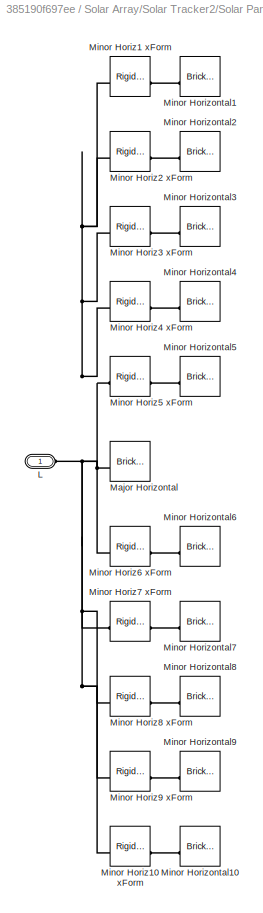
BLOCK [SubSystem] Solar Array/Solar Tracker2/Solar Panel Assembly/Solar Panel/Horizontal Dividers
BLOCK [PMIOPort] Solar Array/Solar Tracker2/Solar Panel Assembly/Solar Panel/Horizontal Dividers/L
  Side = Left
BLOCK [Reference] Solar Array/Solar Tracker2/Solar Panel Assembly/Solar Panel/Horizontal Dividers/Major Horizontal  REF=sm_lib/Body Elements/Brick Solid
  SourceBlock = sm_lib/Body Elements/Brick Solid
  SourceType = Brick Solid
BLOCK [Reference] Solar Array/Solar Tracker2/Solar Panel Assembly/Solar Panel/Horizontal Dividers/Minor Horiz1 xForm  REF=sm_lib/Frames and
Transforms/Rigid
Transform
  SourceBlock = sm_lib/Frames and\nTransforms/Rigid\nTransform
  SourceType = Rigid\nTransform
BLOCK [Reference] Solar Array/Solar Tracker2/Solar Panel Assembly/Solar Panel/Horizontal Dividers/Minor Horiz10 xForm  REF=sm_lib/Frames and
Transforms/Rigid
Transform
  SourceBlock = sm_lib/Frames and\nTransforms/Rigid\nTransform
  SourceType = Rigid\nTransform
BLOCK [Reference] Solar Array/Solar Tracker2/Solar Panel Assembly/Solar Panel/Horizontal Dividers/Minor Horiz2 xForm  REF=sm_lib/Frames and
Transforms/Rigid
Transform
  SourceBlock = sm_lib/Frames and\nTransforms/Rigid\nTransform
  SourceType = Rigid\nTransform
BLOCK [Reference] Solar Array/Solar Tracker2/Solar Panel Assembly/Solar Panel/Horizontal Dividers/Minor Horiz3 xForm  REF=sm_lib/Frames and
Transforms/Rigid
Transform
  SourceBlock = sm_lib/Frames and\nTransforms/Rigid\nTransform
  SourceType = Rigid\nTransform
BLOCK [Reference] Solar Array/Solar Tracker2/Solar Panel Assembly/Solar Panel/Horizontal Dividers/Minor Horiz4 xForm  REF=sm_lib/Frames and
Transforms/Rigid
Transform
  SourceBlock = sm_lib/Frames and\nTransforms/Rigid\nTransform
  SourceType = Rigid\nTransform
BLOCK [Reference] Solar Array/Solar Tracker2/Solar Panel Assembly/Solar Panel/Horizontal Dividers/Minor Horiz5 xForm  REF=sm_lib/Frames and
Transforms/Rigid
Transform
  SourceBlock = sm_lib/Frames and\nTransforms/Rigid\nTransform
  SourceType = Rigid\nTransform
BLOCK [Reference] Solar Array/Solar Tracker2/Solar Panel Assembly/Solar Panel/Horizontal Dividers/Minor Horiz6 xForm  REF=sm_lib/Frames and
Transforms/Rigid
Transform
  SourceBlock = sm_lib/Frames and\nTransforms/Rigid\nTransform
  SourceType = Rigid\nTransform
BLOCK [Reference] Solar Array/Solar Tracker2/Solar Panel Assembly/Solar Panel/Horizontal Dividers/Minor Horiz7 xForm  REF=sm_lib/Frames and
Transforms/Rigid
Transform
  SourceBlock = sm_lib/Frames and\nTransforms/Rigid\nTransform
  SourceType = Rigid\nTransform
BLOCK [Reference] Solar Array/Solar Tracker2/Solar Panel Assembly/Solar Panel/Horizontal Dividers/Minor Horiz8 xForm  REF=sm_lib/Frames and
Transforms/Rigid
Transform
  SourceBlock = sm_lib/Frames and\nTransforms/Rigid\nTransform
  SourceType = Rigid\nTransform
BLOCK [Reference] Solar Array/Solar Tracker2/Solar Panel Assembly/Solar Panel/Horizontal Dividers/Minor Horiz9 xForm  REF=sm_lib/Frames and
Transforms/Rigid
Transform
  SourceBlock = sm_lib/Frames and\nTransforms/Rigid\nTransform
  SourceType = Rigid\nTransform
BLOCK [Reference] Solar Array/Solar Tracker2/Solar Panel Assembly/Solar Panel/Horizontal Dividers/Minor Horizontal1  REF=sm_lib/Body Elements/Brick Solid
  SourceBlock = sm_lib/Body Elements/Brick Solid
  SourceType = Brick Solid
BLOCK [Reference] Solar Array/Solar Tracker2/Solar Panel Assembly/Solar Panel/Horizontal Dividers/Minor Horizontal10  REF=sm_lib/Body Elements/Brick Solid
  SourceBlock = sm_lib/Body Elements/Brick Solid
  SourceType = Brick Solid
BLOCK [Reference] Solar Array/Solar Tracker2/Solar Panel Assembly/Solar Panel/Horizontal Dividers/Minor Horizontal2  REF=sm_lib/Body Elements/Brick Solid
  SourceBlock = sm_lib/Body Elements/Brick Solid
  SourceType = Brick Solid
BLOCK [Reference] Solar Array/Solar Tracker2/Solar Panel Assembly/Solar Panel/Horizontal Dividers/Minor Horizontal3  REF=sm_lib/Body Elements/Brick Solid
  SourceBlock = sm_lib/Body Elements/Brick Solid
  SourceType = Brick Solid
BLOCK [Reference] Solar Array/Solar Tracker2/Solar Panel Assembly/Solar Panel/Horizontal Dividers/Minor Horizontal4  REF=sm_lib/Body Elements/Brick Solid
  SourceBlock = sm_lib/Body Elements/Brick Solid
  SourceType = Brick Solid
BLOCK [Reference] Solar Array/Solar Tracker2/Solar Panel Assembly/Solar Panel/Horizontal Dividers/Minor Horizontal5  REF=sm_lib/Body Elements/Brick Solid
  SourceBlock = sm_lib/Body Elements/Brick Solid
  SourceType = Brick Solid
BLOCK [Reference] Solar Array/Solar Tracker2/Solar Panel Assembly/Solar Panel/Horizontal Dividers/Minor Horizontal6  REF=sm_lib/Body Elements/Brick Solid
  SourceBlock = sm_lib/Body Elements/Brick Solid
  SourceType = Brick Solid
BLOCK [Reference] Solar Array/Solar Tracker2/Solar Panel Assembly/Solar Panel/Horizontal Dividers/Minor Horizontal7  REF=sm_lib/Body Elements/Brick Solid
  SourceBlock = sm_lib/Body Elements/Brick Solid
  SourceType = Brick Solid
BLOCK [Reference] Solar Array/Solar Tracker2/Solar Panel Assembly/Solar Panel/Horizontal Dividers/Minor Horizontal8  REF=sm_lib/Body Elements/Brick Solid
  SourceBlock = sm_lib/Body Elements/Brick Solid
  SourceType = Brick Solid
BLOCK [Reference] Solar Array/Solar Tracker2/Solar Panel Assembly/Solar Panel/Horizontal Dividers/Minor Horizontal9  REF=sm_lib/Body Elements/Brick Solid
  SourceBlock = sm_lib/Body Elements/Brick Solid
  SourceType = Brick Solid
BLOCK [SubSystem] Solar Array/Solar Tracker2/Solar Panel Assembly/Solar Panel/Solar Cells
  NameLocation = right
BLOCK [PMIOPort] Solar Array/Solar Tracker2/Solar Panel Assembly/Solar Panel/Solar Cells/B
  Side = Right
BLOCK [Reference] Solar Array/Solar Tracker2/Solar Panel Assembly/Solar Panel/Solar Cells/Far  REF=sm_lib/Body Elements/Brick Solid
  SourceBlock = sm_lib/Body Elements/Brick Solid
  SourceType = Brick Solid
BLOCK [Reference] Solar Array/Solar Tracker2/Solar Panel Assembly/Solar Panel/Solar Cells/Frame Base  REF=sm_lib/Body Elements/Brick Solid
  SourceBlock = sm_lib/Body Elements/Brick Solid
  SourceType = Brick Solid
BLOCK [PMIOPort] Solar Array/Solar Tracker2/Solar Panel Assembly/Solar Panel/Solar Cells/L
  Port = 2
  Side = Left
BLOCK [Reference] Solar Array/Solar Tracker2/Solar Panel Assembly/Solar Panel/Solar Cells/Left  REF=sm_lib/Body Elements/Brick Solid
  SourceBlock = sm_lib/Body Elements/Brick Solid
  SourceType = Brick Solid
BLOCK [PMIOPort] Solar Array/Solar Tracker2/Solar Panel Assembly/Solar Panel/Solar Cells/N
  Port = 3
  Side = Left
BLOCK [Reference] Solar Array/Solar Tracker2/Solar Panel Assembly/Solar Panel/Solar Cells/Near  REF=sm_lib/Body Elements/Brick Solid
  SourceBlock = sm_lib/Body Elements/Brick Solid
  SourceType = Brick Solid
BLOCK [Reference] Solar Array/Solar Tracker2/Solar Panel Assembly/Solar Panel/Solar Cells/Right  REF=sm_lib/Body Elements/Brick Solid
  SourceBlock = sm_lib/Body Elements/Brick Solid
  SourceType = Brick Solid
BLOCK [Reference] Solar Array/Solar Tracker2/Solar Panel Assembly/Solar Panel/Solar Cells/Solar Cells  REF=sm_lib/Body Elements/Brick Solid
  SourceBlock = sm_lib/Body Elements/Brick Solid
  SourceType = Brick Solid
BLOCK [SubSystem] Solar Array/Solar Tracker2/Solar Panel Assembly/Solar Panel/Vertical Dividers
BLOCK [Reference] Solar Array/Solar Tracker2/Solar Panel Assembly/Solar Panel/Vertical Dividers/Major Vert1 xForm  REF=sm_lib/Frames and
Transforms/Rigid
Transform
  NameLocation = left
  SourceBlock = sm_lib/Frames and\nTransforms/Rigid\nTransform
  SourceType = Rigid\nTransform
BLOCK [Reference] Solar Array/Solar Tracker2/Solar Panel Assembly/Solar Panel/Vertical Dividers/Major Vert2 xForm  REF=sm_lib/Frames and
Transforms/Rigid
Transform
  NameLocation = right
  SourceBlock = sm_lib/Frames and\nTransforms/Rigid\nTransform
  SourceType = Rigid\nTransform
BLOCK [Reference] Solar Array/Solar Tracker2/Solar Panel Assembly/Solar Panel/Vertical Dividers/Major Vertical1  REF=sm_lib/Body Elements/Brick Solid
  NameLocation = left
  SourceBlock = sm_lib/Body Elements/Brick Solid
  SourceType = Brick Solid
BLOCK [Reference] Solar Array/Solar Tracker2/Solar Panel Assembly/Solar Panel/Vertical Dividers/Major Vertical2  REF=sm_lib/Body Elements/Brick Solid
  NameLocation = right
  SourceBlock = sm_lib/Body Elements/Brick Solid
  SourceType = Brick Solid
BLOCK [Reference] Solar Array/Solar Tracker2/Solar Panel Assembly/Solar Panel/Vertical Dividers/Minor Vert1 xForm  REF=sm_lib/Frames and
Transforms/Rigid
Transform
  NameLocation = right
  SourceBlock = sm_lib/Frames and\nTransforms/Rigid\nTransform
  SourceType = Rigid\nTransform
BLOCK [Reference] Solar Array/Solar Tracker2/Solar Panel Assembly/Solar Panel/Vertical Dividers/Minor Vert2 xForm  REF=sm_lib/Frames and
Transforms/Rigid
Transform
  NameLocation = right
  SourceBlock = sm_lib/Frames and\nTransforms/Rigid\nTransform
  SourceType = Rigid\nTransform
BLOCK [Reference] Solar Array/Solar Tracker2/Solar Panel Assembly/Solar Panel/Vertical Dividers/Minor Vert3 xForm  REF=sm_lib/Frames and
Transforms/Rigid
Transform
  NameLocation = right
  SourceBlock = sm_lib/Frames and\nTransforms/Rigid\nTransform
  SourceType = Rigid\nTransform
BLOCK [Reference] Solar Array/Solar Tracker2/Solar Panel Assembly/Solar Panel/Vertical Dividers/Minor Vert4 xForm  REF=sm_lib/Frames and
Transforms/Rigid
Transform
  NameLocation = left
  SourceBlock = sm_lib/Frames and\nTransforms/Rigid\nTransform
  SourceType = Rigid\nTransform
BLOCK [Reference] Solar Array/Solar Tracker2/Solar Panel Assembly/Solar Panel/Vertical Dividers/Minor Vert5 xForm  REF=sm_lib/Frames and
Transforms/Rigid
Transform
  NameLocation = left
  SourceBlock = sm_lib/Frames and\nTransforms/Rigid\nTransform
  SourceType = Rigid\nTransform
BLOCK [Reference] Solar Array/Solar Tracker2/Solar Panel Assembly/Solar Panel/Vertical Dividers/Minor Vert6 xForm  REF=sm_lib/Frames and
Transforms/Rigid
Transform
  NameLocation = left
  SourceBlock = sm_lib/Frames and\nTransforms/Rigid\nTransform
  SourceType = Rigid\nTransform
BLOCK [Reference] Solar Array/Solar Tracker2/Solar Panel Assembly/Solar Panel/Vertical Dividers/Minor Vertical1  REF=sm_lib/Body Elements/Brick Solid
  NameLocation = right
  SourceBlock = sm_lib/Body Elements/Brick Solid
  SourceType = Brick Solid
BLOCK [Reference] Solar Array/Solar Tracker2/Solar Panel Assembly/Solar Panel/Vertical Dividers/Minor Vertical2  REF=sm_lib/Body Elements/Brick Solid
  NameLocation = right
  SourceBlock = sm_lib/Body Elements/Brick Solid
  SourceType = Brick Solid
BLOCK [Reference] Solar Array/Solar Tracker2/Solar Panel Assembly/Solar Panel/Vertical Dividers/Minor Vertical3  REF=sm_lib/Body Elements/Brick Solid
  NameLocation = right
  SourceBlock = sm_lib/Body Elements/Brick Solid
  SourceType = Brick Solid
BLOCK [Reference] Solar Array/Solar Tracker2/Solar Panel Assembly/Solar Panel/Vertical Dividers/Minor Vertical4  REF=sm_lib/Body Elements/Brick Solid
  NameLocation = left
  SourceBlock = sm_lib/Body Elements/Brick Solid
  SourceType = Brick Solid
BLOCK [Reference] Solar Array/Solar Tracker2/Solar Panel Assembly/Solar Panel/Vertical Dividers/Minor Vertical5  REF=sm_lib/Body Elements/Brick Solid
  NameLocation = left
  SourceBlock = sm_lib/Body Elements/Brick Solid
  SourceType = Brick Solid
BLOCK [Reference] Solar Array/Solar Tracker2/Solar Panel Assembly/Solar Panel/Vertical Dividers/Minor Vertical6  REF=sm_lib/Body Elements/Brick Solid
  NameLocation = left
  SourceBlock = sm_lib/Body Elements/Brick Solid
  SourceType = Brick Solid
BLOCK [PMIOPort] Solar Array/Solar Tracker2/Solar Panel Assembly/Solar Panel/Vertical Dividers/N
  NameLocation = right
  Side = Left
BLOCK [SubSystem] Solar Array/Solar Tracker2/Support
  AncestorBlock = WormAndGearConstraintLibrary/Support
  LibrarySourceBlock = sm_solar_tracker_lib/Support
BLOCK [PMIOPort] Solar Array/Solar Tracker2/Support/B
  NameLocation = left
  Side = Left
BLOCK [Reference] Solar Array/Solar Tracker2/Support/Base  REF=sm_lib/Body Elements/Extruded Solid
  NameLocation = left
  SourceBlock = sm_lib/Body Elements/Extruded Solid
  SourceType = Extruded Solid
BLOCK [SubSystem] Solar Array/Solar Tracker2/Support/Column
  AncestorBlock = WormAndGearConstraintLibrary/Hollow Cylinder
  NameLocation = left
BLOCK [Reference] Solar Array/Solar Tracker2/Support/Column/Cylinder  REF=sm_lib/Body Elements/Revolved Solid
  SourceBlock = sm_lib/Body Elements/Revolved Solid
  SourceType = Revolved Solid
BLOCK [PMIOPort] Solar Array/Solar Tracker2/Support/Column/L
  Side = Left
BLOCK [PMIOPort] Solar Array/Solar Tracker2/Support/Column/R
  Port = 2
  Side = Right
BLOCK [PMIOPort] Solar Array/Solar Tracker2/Support/T
  NameLocation = left
  Port = 2
  Side = Right
BLOCK [PMIOPort] Solar Array/Solar Tracker2/p
  Port = 3
  Side = Left
BLOCK [PMIOPort] Solar Array/Solar Tracker2/y
  Port = 2
  Side = Left
BLOCK [SubSystem] Solar Array/Solar Tracker3
BLOCK [PMIOPort] Solar Array/Solar Tracker3/B
  Side = Left
BLOCK [SubSystem] Solar Array/Solar Tracker3/Drive Connection
  AncestorBlock = WormAndGearConstraintLibrary/Drive Connection
  LibrarySourceBlock = sm_solar_tracker_lib/Drive Connection
BLOCK [PMIOPort] Solar Array/Solar Tracker3/Drive Connection/B
  NameLocation = left
  Side = Left
BLOCK [SubSystem] Solar Array/Solar Tracker3/Drive Connection/Bracket
  AncestorBlock = WormAndGearConstraintLibrary/Single Bracket
  NameLocation = left
BLOCK [Reference] Solar Array/Solar Tracker3/Drive Connection/Bracket Base  REF=sm_lib/Body Elements/Cylindrical Solid
  NameLocation = left
  SourceBlock = sm_lib/Body Elements/Cylindrical Solid
  SourceType = Cylindrical Solid
BLOCK [PMIOPort] Solar Array/Solar Tracker3/Drive Connection/Bracket/B
  NameLocation = right
  Side = Left
BLOCK [Reference] Solar Array/Solar Tracker3/Drive Connection/Bracket/Base xForm  REF=sm_lib/Frames and
Transforms/Rigid
Transform
  NameLocation = left
  SourceBlock = sm_lib/Frames and\nTransforms/Rigid\nTransform
  SourceType = Rigid\nTransform
BLOCK [SubSystem] Solar Array/Solar Tracker3/Drive Connection/Bracket/Bracket
  AncestorBlock = WormAndGearConstraintLibrary/Bracket
  NameLocation = left
BLOCK [PMIOPort] Solar Array/Solar Tracker3/Drive Connection/Bracket/Bracket/B
  NameLocation = right
  Side = Left
BLOCK [Reference] Solar Array/Solar Tracker3/Drive Connection/Bracket/Bracket/Bracket  REF=sm_lib/Body Elements/Extruded Solid
  NameLocation = right
  SourceBlock = sm_lib/Body Elements/Extruded Solid
  SourceType = Extruded Solid
BLOCK [PMIOPort] Solar Array/Solar Tracker3/Drive Connection/Bracket/H
  NameLocation = right
  Port = 2
  Side = Right
BLOCK [Reference] Solar Array/Solar Tracker3/Drive Connection/Bracket/Hole xForm  REF=sm_lib/Frames and
Transforms/Rigid
Transform
  NameLocation = right
  SourceBlock = sm_lib/Frames and\nTransforms/Rigid\nTransform
  SourceType = Rigid\nTransform
BLOCK [SubSystem] Solar Array/Solar Tracker3/Drive Connection/Drive Connection
  AncestorBlock = WormAndGearConstraintLibrary/Hollow Cylinder
  NameLocation = left
BLOCK [Reference] Solar Array/Solar Tracker3/Drive Connection/Drive Connection/Cylinder  REF=sm_lib/Body Elements/Revolved Solid
  SourceBlock = sm_lib/Body Elements/Revolved Solid
  SourceType = Revolved Solid
BLOCK [PMIOPort] Solar Array/Solar Tracker3/Drive Connection/Drive Connection/L
  Side = Left
BLOCK [PMIOPort] Solar Array/Solar Tracker3/Drive Connection/Drive Connection/R
  Port = 2
  Side = Right
BLOCK [PMIOPort] Solar Array/Solar Tracker3/Drive Connection/H
  NameLocation = left
  Port = 2
  Side = Right
BLOCK [Reference] Solar Array/Solar Tracker3/Panel Revolute  REF=sm_lib/Joints/Revolute Joint
  SourceBlock = sm_lib/Joints/Revolute Joint
  SourceType = Revolute Joint
BLOCK [SubSystem] Solar Array/Solar Tracker3/Slew Drive
  AncestorBlock = WormAndGearConstraintLibrary/Slew Drive
  LibrarySourceBlock = sm_solar_tracker_lib/Slew Drive
BLOCK [PMIOPort] Solar Array/Solar Tracker3/Slew Drive/B
  Side = Left
BLOCK [SubSystem] Solar Array/Solar Tracker3/Slew Drive/Housing
BLOCK [Reference] Solar Array/Solar Tracker3/Slew Drive/Housing xForm  REF=sm_lib/Frames and
Transforms/Rigid
Transform
  SourceBlock = sm_lib/Frames and\nTransforms/Rigid\nTransform
  SourceType = Rigid\nTransform
BLOCK [PMIOPort] Solar Array/Solar Tracker3/Slew Drive/Housing/B
  Port = 2
  Side = Right
BLOCK [Reference] Solar Array/Solar Tracker3/Slew Drive/Housing/Base xForm  REF=sm_lib/Frames and
Transforms/Rigid
Transform
  SourceBlock = sm_lib/Frames and\nTransforms/Rigid\nTransform
  SourceType = Rigid\nTransform
BLOCK [Reference] Solar Array/Solar Tracker3/Slew Drive/Housing/Housing Base  REF=sm_lib/Body Elements/Extruded Solid
  SourceBlock = sm_lib/Body Elements/Extruded Solid
  SourceType = Extruded Solid
BLOCK [Reference] Solar Array/Solar Tracker3/Slew Drive/Housing/Housing Base xForm  REF=sm_lib/Frames and
Transforms/Rigid
Transform
  NameLocation = left
  SourceBlock = sm_lib/Frames and\nTransforms/Rigid\nTransform
  SourceType = Rigid\nTransform
BLOCK [Reference] Solar Array/Solar Tracker3/Slew Drive/Housing/Housing Side  REF=sm_lib/Body Elements/Extruded Solid
  SourceBlock = sm_lib/Body Elements/Extruded Solid
  SourceType = Extruded Solid
BLOCK [Reference] Solar Array/Solar Tracker3/Slew Drive/Housing/Housing Top  REF=sm_lib/Body Elements/Extruded Solid
  NameLocation = left
  SourceBlock = sm_lib/Body Elements/Extruded Solid
  SourceType = Extruded Solid
BLOCK [Reference] Solar Array/Solar Tracker3/Slew Drive/Housing/Housing Top xForm  REF=sm_lib/Frames and
Transforms/Rigid
Transform
  NameLocation = left
  SourceBlock = sm_lib/Frames and\nTransforms/Rigid\nTransform
  SourceType = Rigid\nTransform
BLOCK [PMIOPort] Solar Array/Solar Tracker3/Slew Drive/Housing/S
  Side = Left
BLOCK [Reference] Solar Array/Solar Tracker3/Slew Drive/Root Frame  REF=sm_lib/Frames and
Transforms/Reference
Frame
  SourceBlock = sm_lib/Frames and\nTransforms/Reference\nFrame
  SourceType = Reference\nFrame
BLOCK [PMIOPort] Solar Array/Solar Tracker3/Slew Drive/T
  Port = 2
  Side = Right
BLOCK [SubSystem] Solar Array/Solar Tracker3/Slew Drive/Worm and Gear Assembly
BLOCK [SubSystem] Solar Array/Solar Tracker3/Slew Drive/Worm and Gear Assembly/Gear
  AncestorBlock = WormAndGearConstraintLibrary/Sliced Hollow Cylinder
BLOCK [Reference] Solar Array/Solar Tracker3/Slew Drive/Worm and Gear Assembly/Gear Base xForm  REF=sm_lib/Frames and
Transforms/Rigid
Transform
  SourceBlock = sm_lib/Frames and\nTransforms/Rigid\nTransform
  SourceType = Rigid\nTransform
BLOCK [Reference] Solar Array/Solar Tracker3/Slew Drive/Worm and Gear Assembly/Gear Revolute  REF=sm_lib/Joints/Revolute Joint
  SourceBlock = sm_lib/Joints/Revolute Joint
  SourceType = Revolute Joint
BLOCK [Reference] Solar Array/Solar Tracker3/Slew Drive/Worm and Gear Assembly/Gear/Bottom  REF=sm_lib/Body Elements/Extruded Solid
  NameLocation = left
  SourceBlock = sm_lib/Body Elements/Extruded Solid
  SourceType = Extruded Solid
BLOCK [PMIOPort] Solar Array/Solar Tracker3/Slew Drive/Worm and Gear Assembly/Gear/L
  Side = Left
BLOCK [Reference] Solar Array/Solar Tracker3/Slew Drive/Worm and Gear Assembly/Gear/Left  REF=sm_lib/Body Elements/Extruded Solid
  SourceBlock = sm_lib/Body Elements/Extruded Solid
  SourceType = Extruded Solid
BLOCK [Reference] Solar Array/Solar Tracker3/Slew Drive/Worm and Gear Assembly/Gear/Left End xForm  REF=sm_lib/Frames and
Transforms/Rigid
Transform
  SourceBlock = sm_lib/Frames and\nTransforms/Rigid\nTransform
  SourceType = Rigid\nTransform
BLOCK [PMIOPort] Solar Array/Solar Tracker3/Slew Drive/Worm and Gear Assembly/Gear/R
  Port = 2
  Side = Right
BLOCK [Reference] Solar Array/Solar Tracker3/Slew Drive/Worm and Gear Assembly/Gear/Right  REF=sm_lib/Body Elements/Extruded Solid
  SourceBlock = sm_lib/Body Elements/Extruded Solid
  SourceType = Extruded Solid
BLOCK [Reference] Solar Array/Solar Tracker3/Slew Drive/Worm and Gear Assembly/Gear/Right End xForm  REF=sm_lib/Frames and
Transforms/Rigid
Transform
  SourceBlock = sm_lib/Frames and\nTransforms/Rigid\nTransform
  SourceType = Rigid\nTransform
BLOCK [Reference] Solar Array/Solar Tracker3/Slew Drive/Worm and Gear Assembly/Gear/Top  REF=sm_lib/Body Elements/Extruded Solid
  NameLocation = left
  SourceBlock = sm_lib/Body Elements/Extruded Solid
  SourceType = Extruded Solid
BLOCK [PMIOPort] Solar Array/Solar Tracker3/Slew Drive/Worm and Gear Assembly/R
  Side = Left
BLOCK [PMIOPort] Solar Array/Solar Tracker3/Slew Drive/Worm and Gear Assembly/T
  Port = 2
  Side = Right
BLOCK [SubSystem] Solar Array/Solar Tracker3/Slew Drive/Worm and Gear Assembly/Worm
BLOCK [Reference] Solar Array/Solar Tracker3/Slew Drive/Worm and Gear Assembly/Worm Bearing  REF=sm_lib/Joints/Bearing Joint
  SourceBlock = sm_lib/Joints/Bearing Joint
  SourceType = Bearing Joint
BLOCK [Reference] Solar Array/Solar Tracker3/Slew Drive/Worm and Gear Assembly/Worm Center xForm  REF=sm_lib/Frames and
Transforms/Rigid
Transform
  NameLocation = right
  SourceBlock = sm_lib/Frames and\nTransforms/Rigid\nTransform
  SourceType = Rigid\nTransform
BLOCK [Reference] Solar Array/Solar Tracker3/Slew Drive/Worm and Gear Assembly/Worm Left xForm  REF=sm_lib/Frames and
Transforms/Rigid
Transform
  SourceBlock = sm_lib/Frames and\nTransforms/Rigid\nTransform
  SourceType = Rigid\nTransform
BLOCK [Reference] Solar Array/Solar Tracker3/Slew Drive/Worm and Gear Assembly/Worm Revolute  REF=sm_lib/Joints/Revolute Joint
  SourceBlock = sm_lib/Joints/Revolute Joint
  SourceType = Revolute Joint
BLOCK [Reference] Solar Array/Solar Tracker3/Slew Drive/Worm and Gear Assembly/Worm Right xForm  REF=sm_lib/Frames and
Transforms/Rigid
Transform
  SourceBlock = sm_lib/Frames and\nTransforms/Rigid\nTransform
  SourceType = Rigid\nTransform
BLOCK [Reference] Solar Array/Solar Tracker3/Slew Drive/Worm and Gear Assembly/Worm and Gear Constraint  REF=sm_lib/Gears and
Couplings/Gears/Worm and Gear
Constraint
  NameLocation = right
  SourceBlock = sm_lib/Gears and\nCouplings/Gears/Worm and Gear\nConstraint
  SourceType = Worm and Gear\nConstraint
BLOCK [PMIOPort] Solar Array/Solar Tracker3/Slew Drive/Worm and Gear Assembly/Worm/L
  Side = Left
BLOCK [SubSystem] Solar Array/Solar Tracker3/Slew Drive/Worm and Gear Assembly/Worm/Left Non-Threaded
  AncestorBlock = WormAndGearConstraintLibrary/Sliced Hollow Cylinder
BLOCK [Reference] Solar Array/Solar Tracker3/Slew Drive/Worm and Gear Assembly/Worm/Left Non-Threaded/Bottom  REF=sm_lib/Body Elements/Extruded Solid
  NameLocation = left
  SourceBlock = sm_lib/Body Elements/Extruded Solid
  SourceType = Extruded Solid
BLOCK [PMIOPort] Solar Array/Solar Tracker3/Slew Drive/Worm and Gear Assembly/Worm/Left Non-Threaded/L
  Side = Left
BLOCK [Reference] Solar Array/Solar Tracker3/Slew Drive/Worm and Gear Assembly/Worm/Left Non-Threaded/Left  REF=sm_lib/Body Elements/Extruded Solid
  SourceBlock = sm_lib/Body Elements/Extruded Solid
  SourceType = Extruded Solid
BLOCK [Reference] Solar Array/Solar Tracker3/Slew Drive/Worm and Gear Assembly/Worm/Left Non-Threaded/Left End xForm  REF=sm_lib/Frames and
Transforms/Rigid
Transform
  SourceBlock = sm_lib/Frames and\nTransforms/Rigid\nTransform
  SourceType = Rigid\nTransform
BLOCK [PMIOPort] Solar Array/Solar Tracker3/Slew Drive/Worm and Gear Assembly/Worm/Left Non-Threaded/R
  Port = 2
  Side = Right
BLOCK [Reference] Solar Array/Solar Tracker3/Slew Drive/Worm and Gear Assembly/Worm/Left Non-Threaded/Right  REF=sm_lib/Body Elements/Extruded Solid
  SourceBlock = sm_lib/Body Elements/Extruded Solid
  SourceType = Extruded Solid
BLOCK [Reference] Solar Array/Solar Tracker3/Slew Drive/Worm and Gear Assembly/Worm/Left Non-Threaded/Right End xForm  REF=sm_lib/Frames and
Transforms/Rigid
Transform
  SourceBlock = sm_lib/Frames and\nTransforms/Rigid\nTransform
  SourceType = Rigid\nTransform
BLOCK [Reference] Solar Array/Solar Tracker3/Slew Drive/Worm and Gear Assembly/Worm/Left Non-Threaded/Top  REF=sm_lib/Body Elements/Extruded Solid
  NameLocation = left
  SourceBlock = sm_lib/Body Elements/Extruded Solid
  SourceType = Extruded Solid
BLOCK [PMIOPort] Solar Array/Solar Tracker3/Slew Drive/Worm and Gear Assembly/Worm/R
  Port = 2
  Side = Right
BLOCK [SubSystem] Solar Array/Solar Tracker3/Slew Drive/Worm and Gear Assembly/Worm/Right Non-Threaded
  AncestorBlock = WormAndGearConstraintLibrary/Sliced Hollow Cylinder
BLOCK [Reference] Solar Array/Solar Tracker3/Slew Drive/Worm and Gear Assembly/Worm/Right Non-Threaded/Bottom  REF=sm_lib/Body Elements/Extruded Solid
  NameLocation = left
  SourceBlock = sm_lib/Body Elements/Extruded Solid
  SourceType = Extruded Solid
BLOCK [PMIOPort] Solar Array/Solar Tracker3/Slew Drive/Worm and Gear Assembly/Worm/Right Non-Threaded/L
  Side = Left
BLOCK [Reference] Solar Array/Solar Tracker3/Slew Drive/Worm and Gear Assembly/Worm/Right Non-Threaded/Left  REF=sm_lib/Body Elements/Extruded Solid
  SourceBlock = sm_lib/Body Elements/Extruded Solid
  SourceType = Extruded Solid
BLOCK [Reference] Solar Array/Solar Tracker3/Slew Drive/Worm and Gear Assembly/Worm/Right Non-Threaded/Left End xForm  REF=sm_lib/Frames and
Transforms/Rigid
Transform
  SourceBlock = sm_lib/Frames and\nTransforms/Rigid\nTransform
  SourceType = Rigid\nTransform
BLOCK [PMIOPort] Solar Array/Solar Tracker3/Slew Drive/Worm and Gear Assembly/Worm/Right Non-Threaded/R
  Port = 2
  Side = Right
BLOCK [Reference] Solar Array/Solar Tracker3/Slew Drive/Worm and Gear Assembly/Worm/Right Non-Threaded/Right  REF=sm_lib/Body Elements/Extruded Solid
  SourceBlock = sm_lib/Body Elements/Extruded Solid
  SourceType = Extruded Solid
BLOCK [Reference] Solar Array/Solar Tracker3/Slew Drive/Worm and Gear Assembly/Worm/Right Non-Threaded/Right End xForm  REF=sm_lib/Frames and
Transforms/Rigid
Transform
  SourceBlock = sm_lib/Frames and\nTransforms/Rigid\nTransform
  SourceType = Rigid\nTransform
BLOCK [Reference] Solar Array/Solar Tracker3/Slew Drive/Worm and Gear Assembly/Worm/Right Non-Threaded/Top  REF=sm_lib/Body Elements/Extruded Solid
  NameLocation = left
  SourceBlock = sm_lib/Body Elements/Extruded Solid
  SourceType = Extruded Solid
BLOCK [SubSystem] Solar Array/Solar Tracker3/Slew Drive/Worm and Gear Assembly/Worm/Threaded
  AncestorBlock = WormAndGearConstraintLibrary/Sliced Hollow Cylinder
BLOCK [Reference] Solar Array/Solar Tracker3/Slew Drive/Worm and Gear Assembly/Worm/Threaded/Bottom  REF=sm_lib/Body Elements/Extruded Solid
  NameLocation = left
  SourceBlock = sm_lib/Body Elements/Extruded Solid
  SourceType = Extruded Solid
BLOCK [PMIOPort] Solar Array/Solar Tracker3/Slew Drive/Worm and Gear Assembly/Worm/Threaded/L
  Side = Left
BLOCK [Reference] Solar Array/Solar Tracker3/Slew Drive/Worm and Gear Assembly/Worm/Threaded/Left  REF=sm_lib/Body Elements/Extruded Solid
  SourceBlock = sm_lib/Body Elements/Extruded Solid
  SourceType = Extruded Solid
BLOCK [Reference] Solar Array/Solar Tracker3/Slew Drive/Worm and Gear Assembly/Worm/Threaded/Left End xForm  REF=sm_lib/Frames and
Transforms/Rigid
Transform
  SourceBlock = sm_lib/Frames and\nTransforms/Rigid\nTransform
  SourceType = Rigid\nTransform
BLOCK [PMIOPort] Solar Array/Solar Tracker3/Slew Drive/Worm and Gear Assembly/Worm/Threaded/R
  Port = 2
  Side = Right
BLOCK [Reference] Solar Array/Solar Tracker3/Slew Drive/Worm and Gear Assembly/Worm/Threaded/Right  REF=sm_lib/Body Elements/Extruded Solid
  SourceBlock = sm_lib/Body Elements/Extruded Solid
  SourceType = Extruded Solid
BLOCK [Reference] Solar Array/Solar Tracker3/Slew Drive/Worm and Gear Assembly/Worm/Threaded/Right End xForm  REF=sm_lib/Frames and
Transforms/Rigid
Transform
  SourceBlock = sm_lib/Frames and\nTransforms/Rigid\nTransform
  SourceType = Rigid\nTransform
BLOCK [Reference] Solar Array/Solar Tracker3/Slew Drive/Worm and Gear Assembly/Worm/Threaded/Top  REF=sm_lib/Body Elements/Extruded Solid
  NameLocation = left
  SourceBlock = sm_lib/Body Elements/Extruded Solid
  SourceType = Extruded Solid
BLOCK [PMIOPort] Solar Array/Solar Tracker3/Slew Drive/Worm and Gear Assembly/qGear
  Port = 3
  Side = Left
BLOCK [PMIOPort] Solar Array/Solar Tracker3/Slew Drive/Worm and Gear Assembly/tWorm
  Port = 5
  Side = Right
BLOCK [PMIOPort] Solar Array/Solar Tracker3/Slew Drive/Worm and Gear Assembly/wWorm
  Port = 4
  Side = Right
BLOCK [PMIOPort] Solar Array/Solar Tracker3/Slew Drive/qGear
  Port = 3
  Side = Left
BLOCK [PMIOPort] Solar Array/Solar Tracker3/Slew Drive/tWorm
  Port = 5
  Side = Right
BLOCK [PMIOPort] Solar Array/Solar Tracker3/Slew Drive/wWorm
  Port = 4
  Side = Right
BLOCK [SubSystem] Solar Array/Solar Tracker3/Solar Panel Assembly
BLOCK [SubSystem] Solar Array/Solar Tracker3/Solar Panel Assembly/Frame
  AncestorBlock = WormAndGearConstraintLibrary/Frame
  LibrarySourceBlock = sm_solar_tracker_lib/Frame
BLOCK [SubSystem] Solar Array/Solar Tracker3/Solar Panel Assembly/Frame Mount
  AncestorBlock = WormAndGearConstraintLibrary/Frame Mount
  LibrarySourceBlock = sm_solar_tracker_lib/Frame Mount
BLOCK [PMIOPort] Solar Array/Solar Tracker3/Solar Panel Assembly/Frame Mount/B
  NameLocation = left
  Side = Left
BLOCK [Reference] Solar Array/Solar Tracker3/Solar Panel Assembly/Frame Mount/Base  REF=sm_lib/Body Elements/Cylindrical Solid
  NameLocation = left
  SourceBlock = sm_lib/Body Elements/Cylindrical Solid
  SourceType = Cylindrical Solid
BLOCK [SubSystem] Solar Array/Solar Tracker3/Solar Panel Assembly/Frame Mount/Double Bracket
  AncestorBlock = WormAndGearConstraintLibrary/Double Bracket
  NameLocation = left
BLOCK [PMIOPort] Solar Array/Solar Tracker3/Solar Panel Assembly/Frame Mount/Double Bracket/B
  Side = Left
BLOCK [Reference] Solar Array/Solar Tracker3/Solar Panel Assembly/Frame Mount/Double Bracket/Base Center Frame  REF=sm_lib/Frames and
Transforms/Reference
Frame
  SourceBlock = sm_lib/Frames and\nTransforms/Reference\nFrame
  SourceType = Reference\nFrame
BLOCK [PMIOPort] Solar Array/Solar Tracker3/Solar Panel Assembly/Frame Mount/Double Bracket/H
  NameLocation = right
  Port = 2
  Side = Right
BLOCK [Reference] Solar Array/Solar Tracker3/Solar Panel Assembly/Frame Mount/Double Bracket/Hole xForm  REF=sm_lib/Frames and
Transforms/Rigid
Transform
  NameLocation = right
  SourceBlock = sm_lib/Frames and\nTransforms/Rigid\nTransform
  SourceType = Rigid\nTransform
BLOCK [SubSystem] Solar Array/Solar Tracker3/Solar Panel Assembly/Frame Mount/Double Bracket/Left Bracket
  AncestorBlock = WormAndGearConstraintLibrary/Bracket
  NameLocation = left
BLOCK [Reference] Solar Array/Solar Tracker3/Solar Panel Assembly/Frame Mount/Double Bracket/Left Bracket xForm  REF=sm_lib/Frames and
Transforms/Rigid
Transform
  NameLocation = left
  SourceBlock = sm_lib/Frames and\nTransforms/Rigid\nTransform
  SourceType = Rigid\nTransform
BLOCK [PMIOPort] Solar Array/Solar Tracker3/Solar Panel Assembly/Frame Mount/Double Bracket/Left Bracket/B
  NameLocation = right
  Side = Left
BLOCK [Reference] Solar Array/Solar Tracker3/Solar Panel Assembly/Frame Mount/Double Bracket/Left Bracket/Bracket  REF=sm_lib/Body Elements/Extruded Solid
  NameLocation = right
  SourceBlock = sm_lib/Body Elements/Extruded Solid
  SourceType = Extruded Solid
BLOCK [SubSystem] Solar Array/Solar Tracker3/Solar Panel Assembly/Frame Mount/Double Bracket/Right Bracket
  AncestorBlock = WormAndGearConstraintLibrary/Bracket
  NameLocation = right
BLOCK [Reference] Solar Array/Solar Tracker3/Solar Panel Assembly/Frame Mount/Double Bracket/Right Bracket xForm  REF=sm_lib/Frames and
Transforms/Rigid
Transform
  NameLocation = right
  SourceBlock = sm_lib/Frames and\nTransforms/Rigid\nTransform
  SourceType = Rigid\nTransform
BLOCK [PMIOPort] Solar Array/Solar Tracker3/Solar Panel Assembly/Frame Mount/Double Bracket/Right Bracket/B
  NameLocation = right
  Side = Left
BLOCK [Reference] Solar Array/Solar Tracker3/Solar Panel Assembly/Frame Mount/Double Bracket/Right Bracket/Bracket  REF=sm_lib/Body Elements/Extruded Solid
  NameLocation = right
  SourceBlock = sm_lib/Body Elements/Extruded Solid
  SourceType = Extruded Solid
BLOCK [PMIOPort] Solar Array/Solar Tracker3/Solar Panel Assembly/Frame Mount/H
  NameLocation = left
  Port = 2
  Side = Right
BLOCK [Reference] Solar Array/Solar Tracker3/Solar Panel Assembly/Frame Mount/Hole xForm  REF=sm_lib/Frames and
Transforms/Rigid
Transform
  NameLocation = left
  SourceBlock = sm_lib/Frames and\nTransforms/Rigid\nTransform
  SourceType = Rigid\nTransform
BLOCK [Reference] Solar Array/Solar Tracker3/Solar Panel Assembly/Frame Mount/Pin  REF=sm_lib/Body Elements/Cylindrical Solid
  SourceBlock = sm_lib/Body Elements/Cylindrical Solid
  SourceType = Cylindrical Solid
BLOCK [PMIOPort] Solar Array/Solar Tracker3/Solar Panel Assembly/Frame/B
  NameLocation = right
  Side = Left
BLOCK [Reference] Solar Array/Solar Tracker3/Solar Panel Assembly/Frame/Base xForm  REF=sm_lib/Frames and
Transforms/Rigid
Transform
  NameLocation = left
  SourceBlock = sm_lib/Frames and\nTransforms/Rigid\nTransform
  SourceType = Rigid\nTransform
BLOCK [SubSystem] Solar Array/Solar Tracker3/Solar Panel Assembly/Frame/Far Frame
  AncestorBlock = WormAndGearConstraintLibrary/Hollow Brick
BLOCK [Reference] Solar Array/Solar Tracker3/Solar Panel Assembly/Frame/Far Frame xForm  REF=sm_lib/Frames and
Transforms/Rigid
Transform
  SourceBlock = sm_lib/Frames and\nTransforms/Rigid\nTransform
  SourceType = Rigid\nTransform
BLOCK [Reference] Solar Array/Solar Tracker3/Solar Panel Assembly/Frame/Far Frame/Brick  REF=sm_lib/Body Elements/Extruded Solid
  NameLocation = right
  SourceBlock = sm_lib/Body Elements/Extruded Solid
  SourceType = Extruded Solid
BLOCK [PMIOPort] Solar Array/Solar Tracker3/Solar Panel Assembly/Frame/Far Frame/L
  Side = Left
BLOCK [Reference] Solar Array/Solar Tracker3/Solar Panel Assembly/Frame/Far Frame/Left xForm  REF=sm_lib/Frames and
Transforms/Rigid
Transform
  SourceBlock = sm_lib/Frames and\nTransforms/Rigid\nTransform
  SourceType = Rigid\nTransform
BLOCK [PMIOPort] Solar Array/Solar Tracker3/Solar Panel Assembly/Frame/Far Frame/R
  Port = 2
  Side = Right
BLOCK [Reference] Solar Array/Solar Tracker3/Solar Panel Assembly/Frame/Far Frame/Right xForm  REF=sm_lib/Frames and
Transforms/Rigid
Transform
  SourceBlock = sm_lib/Frames and\nTransforms/Rigid\nTransform
  SourceType = Rigid\nTransform
BLOCK [SubSystem] Solar Array/Solar Tracker3/Solar Panel Assembly/Frame/Horizontal Beam
  AncestorBlock = WormAndGearConstraintLibrary/Hollow Brick
BLOCK [Reference] Solar Array/Solar Tracker3/Solar Panel Assembly/Frame/Horizontal Beam/Brick  REF=sm_lib/Body Elements/Extruded Solid
  NameLocation = right
  SourceBlock = sm_lib/Body Elements/Extruded Solid
  SourceType = Extruded Solid
BLOCK [PMIOPort] Solar Array/Solar Tracker3/Solar Panel Assembly/Frame/Horizontal Beam/L
  Side = Left
BLOCK [Reference] Solar Array/Solar Tracker3/Solar Panel Assembly/Frame/Horizontal Beam/Left xForm  REF=sm_lib/Frames and
Transforms/Rigid
Transform
  SourceBlock = sm_lib/Frames and\nTransforms/Rigid\nTransform
  SourceType = Rigid\nTransform
BLOCK [PMIOPort] Solar Array/Solar Tracker3/Solar Panel Assembly/Frame/Horizontal Beam/R
  Port = 2
  Side = Right
BLOCK [Reference] Solar Array/Solar Tracker3/Solar Panel Assembly/Frame/Horizontal Beam/Right xForm  REF=sm_lib/Frames and
Transforms/Rigid
Transform
  SourceBlock = sm_lib/Frames and\nTransforms/Rigid\nTransform
  SourceType = Rigid\nTransform
BLOCK [SubSystem] Solar Array/Solar Tracker3/Solar Panel Assembly/Frame/Left Frame
  AncestorBlock = WormAndGearConstraintLibrary/Hollow Brick
BLOCK [Reference] Solar Array/Solar Tracker3/Solar Panel Assembly/Frame/Left Frame xForm  REF=sm_lib/Frames and
Transforms/Rigid
Transform
  SourceBlock = sm_lib/Frames and\nTransforms/Rigid\nTransform
  SourceType = Rigid\nTransform
BLOCK [Reference] Solar Array/Solar Tracker3/Solar Panel Assembly/Frame/Left Frame/Brick  REF=sm_lib/Body Elements/Extruded Solid
  NameLocation = right
  SourceBlock = sm_lib/Body Elements/Extruded Solid
  SourceType = Extruded Solid
BLOCK [PMIOPort] Solar Array/Solar Tracker3/Solar Panel Assembly/Frame/Left Frame/L
  Side = Left
BLOCK [Reference] Solar Array/Solar Tracker3/Solar Panel Assembly/Frame/Left Frame/Left xForm  REF=sm_lib/Frames and
Transforms/Rigid
Transform
  SourceBlock = sm_lib/Frames and\nTransforms/Rigid\nTransform
  SourceType = Rigid\nTransform
BLOCK [PMIOPort] Solar Array/Solar Tracker3/Solar Panel Assembly/Frame/Left Frame/R
  Port = 2
  Side = Right
BLOCK [Reference] Solar Array/Solar Tracker3/Solar Panel Assembly/Frame/Left Frame/Right xForm  REF=sm_lib/Frames and
Transforms/Rigid
Transform
  SourceBlock = sm_lib/Frames and\nTransforms/Rigid\nTransform
  SourceType = Rigid\nTransform
BLOCK [SubSystem] Solar Array/Solar Tracker3/Solar Panel Assembly/Frame/Near Frame
  AncestorBlock = WormAndGearConstraintLibrary/Hollow Brick
BLOCK [Reference] Solar Array/Solar Tracker3/Solar Panel Assembly/Frame/Near Frame xForm  REF=sm_lib/Frames and
Transforms/Rigid
Transform
  SourceBlock = sm_lib/Frames and\nTransforms/Rigid\nTransform
  SourceType = Rigid\nTransform
BLOCK [Reference] Solar Array/Solar Tracker3/Solar Panel Assembly/Frame/Near Frame/Brick  REF=sm_lib/Body Elements/Extruded Solid
  NameLocation = right
  SourceBlock = sm_lib/Body Elements/Extruded Solid
  SourceType = Extruded Solid
BLOCK [PMIOPort] Solar Array/Solar Tracker3/Solar Panel Assembly/Frame/Near Frame/L
  Side = Left
BLOCK [Reference] Solar Array/Solar Tracker3/Solar Panel Assembly/Frame/Near Frame/Left xForm  REF=sm_lib/Frames and
Transforms/Rigid
Transform
  SourceBlock = sm_lib/Frames and\nTransforms/Rigid\nTransform
  SourceType = Rigid\nTransform
BLOCK [PMIOPort] Solar Array/Solar Tracker3/Solar Panel Assembly/Frame/Near Frame/R
  Port = 2
  Side = Right
BLOCK [Reference] Solar Array/Solar Tracker3/Solar Panel Assembly/Frame/Near Frame/Right xForm  REF=sm_lib/Frames and
Transforms/Rigid
Transform
  SourceBlock = sm_lib/Frames and\nTransforms/Rigid\nTransform
  SourceType = Rigid\nTransform
BLOCK [SubSystem] Solar Array/Solar Tracker3/Solar Panel Assembly/Frame/Right Frame
  AncestorBlock = WormAndGearConstraintLibrary/Hollow Brick
BLOCK [Reference] Solar Array/Solar Tracker3/Solar Panel Assembly/Frame/Right Frame xForm  REF=sm_lib/Frames and
Transforms/Rigid
Transform
  SourceBlock = sm_lib/Frames and\nTransforms/Rigid\nTransform
  SourceType = Rigid\nTransform
BLOCK [Reference] Solar Array/Solar Tracker3/Solar Panel Assembly/Frame/Right Frame/Brick  REF=sm_lib/Body Elements/Extruded Solid
  NameLocation = right
  SourceBlock = sm_lib/Body Elements/Extruded Solid
  SourceType = Extruded Solid
BLOCK [PMIOPort] Solar Array/Solar Tracker3/Solar Panel Assembly/Frame/Right Frame/L
  Side = Left
BLOCK [Reference] Solar Array/Solar Tracker3/Solar Panel Assembly/Frame/Right Frame/Left xForm  REF=sm_lib/Frames and
Transforms/Rigid
Transform
  SourceBlock = sm_lib/Frames and\nTransforms/Rigid\nTransform
  SourceType = Rigid\nTransform
BLOCK [PMIOPort] Solar Array/Solar Tracker3/Solar Panel Assembly/Frame/Right Frame/R
  Port = 2
  Side = Right
BLOCK [Reference] Solar Array/Solar Tracker3/Solar Panel Assembly/Frame/Right Frame/Right xForm  REF=sm_lib/Frames and
Transforms/Rigid
Transform
  SourceBlock = sm_lib/Frames and\nTransforms/Rigid\nTransform
  SourceType = Rigid\nTransform
BLOCK [PMIOPort] Solar Array/Solar Tracker3/Solar Panel Assembly/Frame/T
  NameLocation = left
  Port = 2
  Side = Right
BLOCK [Reference] Solar Array/Solar Tracker3/Solar Panel Assembly/Frame/Top xForm  REF=sm_lib/Frames and
Transforms/Rigid
Transform
  NameLocation = left
  SourceBlock = sm_lib/Frames and\nTransforms/Rigid\nTransform
  SourceType = Rigid\nTransform
BLOCK [SubSystem] Solar Array/Solar Tracker3/Solar Panel Assembly/Frame/Vertical Beam1
  AncestorBlock = WormAndGearConstraintLibrary/Hollow Brick
BLOCK [Reference] Solar Array/Solar Tracker3/Solar Panel Assembly/Frame/Vertical Beam1 xForm  REF=sm_lib/Frames and
Transforms/Rigid
Transform
  SourceBlock = sm_lib/Frames and\nTransforms/Rigid\nTransform
  SourceType = Rigid\nTransform
BLOCK [Reference] Solar Array/Solar Tracker3/Solar Panel Assembly/Frame/Vertical Beam1/Brick  REF=sm_lib/Body Elements/Extruded Solid
  NameLocation = right
  SourceBlock = sm_lib/Body Elements/Extruded Solid
  SourceType = Extruded Solid
BLOCK [PMIOPort] Solar Array/Solar Tracker3/Solar Panel Assembly/Frame/Vertical Beam1/L
  Side = Left
BLOCK [Reference] Solar Array/Solar Tracker3/Solar Panel Assembly/Frame/Vertical Beam1/Left xForm  REF=sm_lib/Frames and
Transforms/Rigid
Transform
  SourceBlock = sm_lib/Frames and\nTransforms/Rigid\nTransform
  SourceType = Rigid\nTransform
BLOCK [PMIOPort] Solar Array/Solar Tracker3/Solar Panel Assembly/Frame/Vertical Beam1/R
  Port = 2
  Side = Right
BLOCK [Reference] Solar Array/Solar Tracker3/Solar Panel Assembly/Frame/Vertical Beam1/Right xForm  REF=sm_lib/Frames and
Transforms/Rigid
Transform
  SourceBlock = sm_lib/Frames and\nTransforms/Rigid\nTransform
  SourceType = Rigid\nTransform
BLOCK [SubSystem] Solar Array/Solar Tracker3/Solar Panel Assembly/Frame/Vertical Beam2
  AncestorBlock = WormAndGearConstraintLibrary/Hollow Brick
BLOCK [Reference] Solar Array/Solar Tracker3/Solar Panel Assembly/Frame/Vertical Beam2 xForm  REF=sm_lib/Frames and
Transforms/Rigid
Transform
  SourceBlock = sm_lib/Frames and\nTransforms/Rigid\nTransform
  SourceType = Rigid\nTransform
BLOCK [Reference] Solar Array/Solar Tracker3/Solar Panel Assembly/Frame/Vertical Beam2/Brick  REF=sm_lib/Body Elements/Extruded Solid
  NameLocation = right
  SourceBlock = sm_lib/Body Elements/Extruded Solid
  SourceType = Extruded Solid
BLOCK [PMIOPort] Solar Array/Solar Tracker3/Solar Panel Assembly/Frame/Vertical Beam2/L
  Side = Left
BLOCK [Reference] Solar Array/Solar Tracker3/Solar Panel Assembly/Frame/Vertical Beam2/Left xForm  REF=sm_lib/Frames and
Transforms/Rigid
Transform
  SourceBlock = sm_lib/Frames and\nTransforms/Rigid\nTransform
  SourceType = Rigid\nTransform
BLOCK [PMIOPort] Solar Array/Solar Tracker3/Solar Panel Assembly/Frame/Vertical Beam2/R
  Port = 2
  Side = Right
BLOCK [Reference] Solar Array/Solar Tracker3/Solar Panel Assembly/Frame/Vertical Beam2/Right xForm  REF=sm_lib/Frames and
Transforms/Rigid
Transform
  SourceBlock = sm_lib/Frames and\nTransforms/Rigid\nTransform
  SourceType = Rigid\nTransform
BLOCK [PMIOPort] Solar Array/Solar Tracker3/Solar Panel Assembly/H
  Side = Left
BLOCK [SubSystem] Solar Array/Solar Tracker3/Solar Panel Assembly/Solar Panel
  AncestorBlock = WormAndGearConstraintLibrary/Solar Panel
  LibrarySourceBlock = sm_solar_tracker_lib/Solar Panel
BLOCK [PMIOPort] Solar Array/Solar Tracker3/Solar Panel Assembly/Solar Panel/B
  NameLocation = right
  Side = Left
BLOCK [SubSystem] Solar Array/Solar Tracker3/Solar Panel Assembly/Solar Panel/Horizontal Dividers
BLOCK [PMIOPort] Solar Array/Solar Tracker3/Solar Panel Assembly/Solar Panel/Horizontal Dividers/L
  Side = Left
BLOCK [Reference] Solar Array/Solar Tracker3/Solar Panel Assembly/Solar Panel/Horizontal Dividers/Major Horizontal  REF=sm_lib/Body Elements/Brick Solid
  SourceBlock = sm_lib/Body Elements/Brick Solid
  SourceType = Brick Solid
BLOCK [Reference] Solar Array/Solar Tracker3/Solar Panel Assembly/Solar Panel/Horizontal Dividers/Minor Horiz1 xForm  REF=sm_lib/Frames and
Transforms/Rigid
Transform
  SourceBlock = sm_lib/Frames and\nTransforms/Rigid\nTransform
  SourceType = Rigid\nTransform
BLOCK [Reference] Solar Array/Solar Tracker3/Solar Panel Assembly/Solar Panel/Horizontal Dividers/Minor Horiz10 xForm  REF=sm_lib/Frames and
Transforms/Rigid
Transform
  SourceBlock = sm_lib/Frames and\nTransforms/Rigid\nTransform
  SourceType = Rigid\nTransform
BLOCK [Reference] Solar Array/Solar Tracker3/Solar Panel Assembly/Solar Panel/Horizontal Dividers/Minor Horiz2 xForm  REF=sm_lib/Frames and
Transforms/Rigid
Transform
  SourceBlock = sm_lib/Frames and\nTransforms/Rigid\nTransform
  SourceType = Rigid\nTransform
BLOCK [Reference] Solar Array/Solar Tracker3/Solar Panel Assembly/Solar Panel/Horizontal Dividers/Minor Horiz3 xForm  REF=sm_lib/Frames and
Transforms/Rigid
Transform
  SourceBlock = sm_lib/Frames and\nTransforms/Rigid\nTransform
  SourceType = Rigid\nTransform
BLOCK [Reference] Solar Array/Solar Tracker3/Solar Panel Assembly/Solar Panel/Horizontal Dividers/Minor Horiz4 xForm  REF=sm_lib/Frames and
Transforms/Rigid
Transform
  SourceBlock = sm_lib/Frames and\nTransforms/Rigid\nTransform
  SourceType = Rigid\nTransform
BLOCK [Reference] Solar Array/Solar Tracker3/Solar Panel Assembly/Solar Panel/Horizontal Dividers/Minor Horiz5 xForm  REF=sm_lib/Frames and
Transforms/Rigid
Transform
  SourceBlock = sm_lib/Frames and\nTransforms/Rigid\nTransform
  SourceType = Rigid\nTransform
BLOCK [Reference] Solar Array/Solar Tracker3/Solar Panel Assembly/Solar Panel/Horizontal Dividers/Minor Horiz6 xForm  REF=sm_lib/Frames and
Transforms/Rigid
Transform
  SourceBlock = sm_lib/Frames and\nTransforms/Rigid\nTransform
  SourceType = Rigid\nTransform
BLOCK [Reference] Solar Array/Solar Tracker3/Solar Panel Assembly/Solar Panel/Horizontal Dividers/Minor Horiz7 xForm  REF=sm_lib/Frames and
Transforms/Rigid
Transform
  SourceBlock = sm_lib/Frames and\nTransforms/Rigid\nTransform
  SourceType = Rigid\nTransform
BLOCK [Reference] Solar Array/Solar Tracker3/Solar Panel Assembly/Solar Panel/Horizontal Dividers/Minor Horiz8 xForm  REF=sm_lib/Frames and
Transforms/Rigid
Transform
  SourceBlock = sm_lib/Frames and\nTransforms/Rigid\nTransform
  SourceType = Rigid\nTransform
BLOCK [Reference] Solar Array/Solar Tracker3/Solar Panel Assembly/Solar Panel/Horizontal Dividers/Minor Horiz9 xForm  REF=sm_lib/Frames and
Transforms/Rigid
Transform
  SourceBlock = sm_lib/Frames and\nTransforms/Rigid\nTransform
  SourceType = Rigid\nTransform
BLOCK [Reference] Solar Array/Solar Tracker3/Solar Panel Assembly/Solar Panel/Horizontal Dividers/Minor Horizontal1  REF=sm_lib/Body Elements/Brick Solid
  SourceBlock = sm_lib/Body Elements/Brick Solid
  SourceType = Brick Solid
BLOCK [Reference] Solar Array/Solar Tracker3/Solar Panel Assembly/Solar Panel/Horizontal Dividers/Minor Horizontal10  REF=sm_lib/Body Elements/Brick Solid
  SourceBlock = sm_lib/Body Elements/Brick Solid
  SourceType = Brick Solid
BLOCK [Reference] Solar Array/Solar Tracker3/Solar Panel Assembly/Solar Panel/Horizontal Dividers/Minor Horizontal2  REF=sm_lib/Body Elements/Brick Solid
  SourceBlock = sm_lib/Body Elements/Brick Solid
  SourceType = Brick Solid
BLOCK [Reference] Solar Array/Solar Tracker3/Solar Panel Assembly/Solar Panel/Horizontal Dividers/Minor Horizontal3  REF=sm_lib/Body Elements/Brick Solid
  SourceBlock = sm_lib/Body Elements/Brick Solid
  SourceType = Brick Solid
BLOCK [Reference] Solar Array/Solar Tracker3/Solar Panel Assembly/Solar Panel/Horizontal Dividers/Minor Horizontal4  REF=sm_lib/Body Elements/Brick Solid
  SourceBlock = sm_lib/Body Elements/Brick Solid
  SourceType = Brick Solid
BLOCK [Reference] Solar Array/Solar Tracker3/Solar Panel Assembly/Solar Panel/Horizontal Dividers/Minor Horizontal5  REF=sm_lib/Body Elements/Brick Solid
  SourceBlock = sm_lib/Body Elements/Brick Solid
  SourceType = Brick Solid
BLOCK [Reference] Solar Array/Solar Tracker3/Solar Panel Assembly/Solar Panel/Horizontal Dividers/Minor Horizontal6  REF=sm_lib/Body Elements/Brick Solid
  SourceBlock = sm_lib/Body Elements/Brick Solid
  SourceType = Brick Solid
BLOCK [Reference] Solar Array/Solar Tracker3/Solar Panel Assembly/Solar Panel/Horizontal Dividers/Minor Horizontal7  REF=sm_lib/Body Elements/Brick Solid
  SourceBlock = sm_lib/Body Elements/Brick Solid
  SourceType = Brick Solid
BLOCK [Reference] Solar Array/Solar Tracker3/Solar Panel Assembly/Solar Panel/Horizontal Dividers/Minor Horizontal8  REF=sm_lib/Body Elements/Brick Solid
  SourceBlock = sm_lib/Body Elements/Brick Solid
  SourceType = Brick Solid
BLOCK [Reference] Solar Array/Solar Tracker3/Solar Panel Assembly/Solar Panel/Horizontal Dividers/Minor Horizontal9  REF=sm_lib/Body Elements/Brick Solid
  SourceBlock = sm_lib/Body Elements/Brick Solid
  SourceType = Brick Solid
BLOCK [SubSystem] Solar Array/Solar Tracker3/Solar Panel Assembly/Solar Panel/Solar Cells
  NameLocation = right
BLOCK [PMIOPort] Solar Array/Solar Tracker3/Solar Panel Assembly/Solar Panel/Solar Cells/B
  Side = Right
BLOCK [Reference] Solar Array/Solar Tracker3/Solar Panel Assembly/Solar Panel/Solar Cells/Far  REF=sm_lib/Body Elements/Brick Solid
  SourceBlock = sm_lib/Body Elements/Brick Solid
  SourceType = Brick Solid
BLOCK [Reference] Solar Array/Solar Tracker3/Solar Panel Assembly/Solar Panel/Solar Cells/Frame Base  REF=sm_lib/Body Elements/Brick Solid
  SourceBlock = sm_lib/Body Elements/Brick Solid
  SourceType = Brick Solid
BLOCK [PMIOPort] Solar Array/Solar Tracker3/Solar Panel Assembly/Solar Panel/Solar Cells/L
  Port = 2
  Side = Left
BLOCK [Reference] Solar Array/Solar Tracker3/Solar Panel Assembly/Solar Panel/Solar Cells/Left  REF=sm_lib/Body Elements/Brick Solid
  SourceBlock = sm_lib/Body Elements/Brick Solid
  SourceType = Brick Solid
BLOCK [PMIOPort] Solar Array/Solar Tracker3/Solar Panel Assembly/Solar Panel/Solar Cells/N
  Port = 3
  Side = Left
BLOCK [Reference] Solar Array/Solar Tracker3/Solar Panel Assembly/Solar Panel/Solar Cells/Near  REF=sm_lib/Body Elements/Brick Solid
  SourceBlock = sm_lib/Body Elements/Brick Solid
  SourceType = Brick Solid
BLOCK [Reference] Solar Array/Solar Tracker3/Solar Panel Assembly/Solar Panel/Solar Cells/Right  REF=sm_lib/Body Elements/Brick Solid
  SourceBlock = sm_lib/Body Elements/Brick Solid
  SourceType = Brick Solid
BLOCK [Reference] Solar Array/Solar Tracker3/Solar Panel Assembly/Solar Panel/Solar Cells/Solar Cells  REF=sm_lib/Body Elements/Brick Solid
  SourceBlock = sm_lib/Body Elements/Brick Solid
  SourceType = Brick Solid
BLOCK [SubSystem] Solar Array/Solar Tracker3/Solar Panel Assembly/Solar Panel/Vertical Dividers
BLOCK [Reference] Solar Array/Solar Tracker3/Solar Panel Assembly/Solar Panel/Vertical Dividers/Major Vert1 xForm  REF=sm_lib/Frames and
Transforms/Rigid
Transform
  NameLocation = left
  SourceBlock = sm_lib/Frames and\nTransforms/Rigid\nTransform
  SourceType = Rigid\nTransform
BLOCK [Reference] Solar Array/Solar Tracker3/Solar Panel Assembly/Solar Panel/Vertical Dividers/Major Vert2 xForm  REF=sm_lib/Frames and
Transforms/Rigid
Transform
  NameLocation = right
  SourceBlock = sm_lib/Frames and\nTransforms/Rigid\nTransform
  SourceType = Rigid\nTransform
BLOCK [Reference] Solar Array/Solar Tracker3/Solar Panel Assembly/Solar Panel/Vertical Dividers/Major Vertical1  REF=sm_lib/Body Elements/Brick Solid
  NameLocation = left
  SourceBlock = sm_lib/Body Elements/Brick Solid
  SourceType = Brick Solid
BLOCK [Reference] Solar Array/Solar Tracker3/Solar Panel Assembly/Solar Panel/Vertical Dividers/Major Vertical2  REF=sm_lib/Body Elements/Brick Solid
  NameLocation = right
  SourceBlock = sm_lib/Body Elements/Brick Solid
  SourceType = Brick Solid
BLOCK [Reference] Solar Array/Solar Tracker3/Solar Panel Assembly/Solar Panel/Vertical Dividers/Minor Vert1 xForm  REF=sm_lib/Frames and
Transforms/Rigid
Transform
  NameLocation = right
  SourceBlock = sm_lib/Frames and\nTransforms/Rigid\nTransform
  SourceType = Rigid\nTransform
BLOCK [Reference] Solar Array/Solar Tracker3/Solar Panel Assembly/Solar Panel/Vertical Dividers/Minor Vert2 xForm  REF=sm_lib/Frames and
Transforms/Rigid
Transform
  NameLocation = right
  SourceBlock = sm_lib/Frames and\nTransforms/Rigid\nTransform
  SourceType = Rigid\nTransform
BLOCK [Reference] Solar Array/Solar Tracker3/Solar Panel Assembly/Solar Panel/Vertical Dividers/Minor Vert3 xForm  REF=sm_lib/Frames and
Transforms/Rigid
Transform
  NameLocation = right
  SourceBlock = sm_lib/Frames and\nTransforms/Rigid\nTransform
  SourceType = Rigid\nTransform
BLOCK [Reference] Solar Array/Solar Tracker3/Solar Panel Assembly/Solar Panel/Vertical Dividers/Minor Vert4 xForm  REF=sm_lib/Frames and
Transforms/Rigid
Transform
  NameLocation = left
  SourceBlock = sm_lib/Frames and\nTransforms/Rigid\nTransform
  SourceType = Rigid\nTransform
BLOCK [Reference] Solar Array/Solar Tracker3/Solar Panel Assembly/Solar Panel/Vertical Dividers/Minor Vert5 xForm  REF=sm_lib/Frames and
Transforms/Rigid
Transform
  NameLocation = left
  SourceBlock = sm_lib/Frames and\nTransforms/Rigid\nTransform
  SourceType = Rigid\nTransform
BLOCK [Reference] Solar Array/Solar Tracker3/Solar Panel Assembly/Solar Panel/Vertical Dividers/Minor Vert6 xForm  REF=sm_lib/Frames and
Transforms/Rigid
Transform
  NameLocation = left
  SourceBlock = sm_lib/Frames and\nTransforms/Rigid\nTransform
  SourceType = Rigid\nTransform
BLOCK [Reference] Solar Array/Solar Tracker3/Solar Panel Assembly/Solar Panel/Vertical Dividers/Minor Vertical1  REF=sm_lib/Body Elements/Brick Solid
  NameLocation = right
  SourceBlock = sm_lib/Body Elements/Brick Solid
  SourceType = Brick Solid
BLOCK [Reference] Solar Array/Solar Tracker3/Solar Panel Assembly/Solar Panel/Vertical Dividers/Minor Vertical2  REF=sm_lib/Body Elements/Brick Solid
  NameLocation = right
  SourceBlock = sm_lib/Body Elements/Brick Solid
  SourceType = Brick Solid
BLOCK [Reference] Solar Array/Solar Tracker3/Solar Panel Assembly/Solar Panel/Vertical Dividers/Minor Vertical3  REF=sm_lib/Body Elements/Brick Solid
  NameLocation = right
  SourceBlock = sm_lib/Body Elements/Brick Solid
  SourceType = Brick Solid
BLOCK [Reference] Solar Array/Solar Tracker3/Solar Panel Assembly/Solar Panel/Vertical Dividers/Minor Vertical4  REF=sm_lib/Body Elements/Brick Solid
  NameLocation = left
  SourceBlock = sm_lib/Body Elements/Brick Solid
  SourceType = Brick Solid
BLOCK [Reference] Solar Array/Solar Tracker3/Solar Panel Assembly/Solar Panel/Vertical Dividers/Minor Vertical5  REF=sm_lib/Body Elements/Brick Solid
  NameLocation = left
  SourceBlock = sm_lib/Body Elements/Brick Solid
  SourceType = Brick Solid
BLOCK [Reference] Solar Array/Solar Tracker3/Solar Panel Assembly/Solar Panel/Vertical Dividers/Minor Vertical6  REF=sm_lib/Body Elements/Brick Solid
  NameLocation = left
  SourceBlock = sm_lib/Body Elements/Brick Solid
  SourceType = Brick Solid
BLOCK [PMIOPort] Solar Array/Solar Tracker3/Solar Panel Assembly/Solar Panel/Vertical Dividers/N
  NameLocation = right
  Side = Left
BLOCK [SubSystem] Solar Array/Solar Tracker3/Support
  AncestorBlock = WormAndGearConstraintLibrary/Support
  LibrarySourceBlock = sm_solar_tracker_lib/Support
BLOCK [PMIOPort] Solar Array/Solar Tracker3/Support/B
  NameLocation = left
  Side = Left
BLOCK [Reference] Solar Array/Solar Tracker3/Support/Base  REF=sm_lib/Body Elements/Extruded Solid
  NameLocation = left
  SourceBlock = sm_lib/Body Elements/Extruded Solid
  SourceType = Extruded Solid
BLOCK [SubSystem] Solar Array/Solar Tracker3/Support/Column
  AncestorBlock = WormAndGearConstraintLibrary/Hollow Cylinder
  NameLocation = left
BLOCK [Reference] Solar Array/Solar Tracker3/Support/Column/Cylinder  REF=sm_lib/Body Elements/Revolved Solid
  SourceBlock = sm_lib/Body Elements/Revolved Solid
  SourceType = Revolved Solid
BLOCK [PMIOPort] Solar Array/Solar Tracker3/Support/Column/L
  Side = Left
BLOCK [PMIOPort] Solar Array/Solar Tracker3/Support/Column/R
  Port = 2
  Side = Right
BLOCK [PMIOPort] Solar Array/Solar Tracker3/Support/T
  NameLocation = left
  Port = 2
  Side = Right
BLOCK [PMIOPort] Solar Array/Solar Tracker3/p
  Port = 3
  Side = Left
BLOCK [PMIOPort] Solar Array/Solar Tracker3/t
  Port = 5
  Side = Right
BLOCK [PMIOPort] Solar Array/Solar Tracker3/w
  Port = 4
  Side = Right
BLOCK [PMIOPort] Solar Array/Solar Tracker3/y
  Port = 2
  Side = Left
BLOCK [Reference] Solar Array/Tracker1 xForm  REF=sm_lib/Frames and
Transforms/Rigid
Transform
  SourceBlock = sm_lib/Frames and\nTransforms/Rigid\nTransform
  SourceType = Rigid\nTransform
BLOCK [Reference] Solar Array/Tracker2 xForm  REF=sm_lib/Frames and
Transforms/Rigid
Transform
  SourceBlock = sm_lib/Frames and\nTransforms/Rigid\nTransform
  SourceType = Rigid\nTransform
BLOCK [Reference] Solar Array/Tracker3 xForm  REF=sm_lib/Frames and
Transforms/Rigid
Transform
  SourceBlock = sm_lib/Frames and\nTransforms/Rigid\nTransform
  SourceType = Rigid\nTransform
BLOCK [PMIOPort] Solar Array/W
  Side = Left
BLOCK [PMIOPort] Solar Array/pitch
  Port = 5
  Side = Left
BLOCK [PMIOPort] Solar Array/tWorm
  Port = 4
  Side = Right
BLOCK [PMIOPort] Solar Array/wWorm
  Port = 2
  Side = Right
BLOCK [PMIOPort] Solar Array/yaw
  Port = 3
  Side = Left
BLOCK [Reference] Solver Configuration  REF=nesl_utility/Solver
Configuration
  SourceBlock = nesl_utility/Solver\nConfiguration
  SourceType = Solver\nConfiguration
BLOCK [Reference] World Frame  REF=sm_lib/Frames and
Transforms/World Frame
  SourceBlock = sm_lib/Frames and\nTransforms/World Frame
  SourceType = World Frame
BLOCK [SubSystem] Yaw Signal
  Commented = on
BLOCK [PMIOPort] Yaw Signal/Signal
  Side = Right
BLOCK [Reference] Yaw Signal/Simulink-PS Converter1  REF=nesl_utility/Simulink-PS
Converter
  SourceBlock = nesl_utility/Simulink-PS\nConverter
  SourceType = Simulink-PS\nConverter
BLOCK [Reference] Yaw Signal/Yaw Signal  REF=SignalEditorBlockLib/Signal Editor
  SourceBlock = SignalEditorBlockLib/Signal Editor
  SourceType = SignalEditor
  UserDataPersistent = on
ANNOTATION (root): 1. Explore simulation results using sscexplore 2. Open the subsystem containing the Worm and Gear Constraint block 3. Learn more about this example 4. Learn more about the Worm and Gear Constraint block 5. Learn more about multibody modeling
ANNOTATION (root): <copyright redacted>
ANNOTATION (root): Using the Worm and Gear Constraint Block - Solar Tracker
LINE Clock:1 -> MATLAB Function1:1
LINE Constant1:1 -> MATLAB Function:1
LINE Constant:1 -> MATLAB Function:2
LINE MATLAB Function1:1 -> MATLAB Function:3
LINE MATLAB Function:1 -> Simulink-PS Converter:1
LINE MATLAB Function:2 -> Simulink-PS Converter1:1
LINE Motor Power/PS-Simulink Converter2:1 -> Motor Power/P:1
LINE Motor Power:1 -> Scope:3
LINE PS-Simulink Converter1:1 -> Scope:2
LINE PS-Simulink Converter:1 -> Scope:1
LINE Pitch Signal/Pitch Signal:1 -> Pitch Signal/Simulink-PS Converter2:1
LINE Yaw Signal/Yaw Signal:1 -> Yaw Signal/Simulink-PS Converter1:1
PNET net1: Alignment:LConn1 -- Mechanism Configuration:RConn1 -- Solver Configuration:RConn1 -- World Frame:RConn1
PLINE Alignment:RConn1 -- Solar Array:LConn1
PLINE Motor Power/Motor Power:LConn1 -- Motor Power/w:RConn1
PLINE Motor Power/Motor Power:LConn2 -- Motor Power/t:RConn1
PLINE Motor Power/Motor Power:RConn1 -- Motor Power/PS-Simulink Converter2:LConn1
PNET net2: Motor Power:LConn1 -- PS-Simulink Converter:LConn1 -- Solar Array:RConn1
PNET net3: Motor Power:LConn2 -- PS-Simulink Converter1:LConn1 -- Solar Array:RConn2
PLINE Pitch Signal/Signal:RConn1 -- Pitch Signal/Simulink-PS Converter2:RConn1
PLINE Simulink-PS Converter1:RConn1 -- Solar Array:LConn3
PLINE Simulink-PS Converter:RConn1 -- Solar Array:LConn2
PLINE Solar Array/Solar Tracker1/B:RConn1 -- Solar Array/Solar Tracker1/Support:LConn1
PLINE Solar Array/Solar Tracker1/Drive Connection:LConn1 -- Solar Array/Solar Tracker1/Slew Drive:RConn1
PLINE Solar Array/Solar Tracker1/Drive Connection:RConn1 -- Solar Array/Solar Tracker1/Panel Revolute:LConn1
PLINE Solar Array/Solar Tracker1/PS Terminator1:LConn1 -- Solar Array/Solar Tracker1/Slew Drive:RConn3
PLINE Solar Array/Solar Tracker1/PS Terminator:LConn1 -- Solar Array/Solar Tracker1/Slew Drive:RConn2
PLINE Solar Array/Solar Tracker1/Panel Revolute:LConn2 -- Solar Array/Solar Tracker1/p:RConn1
PLINE Solar Array/Solar Tracker1/Panel Revolute:RConn1 -- Solar Array/Solar Tracker1/Solar Panel Assembly:LConn1
PLINE Solar Array/Solar Tracker1/Slew Drive:LConn1 -- Solar Array/Solar Tracker1/Support:RConn1
PLINE Solar Array/Solar Tracker1/Slew Drive:LConn2 -- Solar Array/Solar Tracker1/y:RConn1
PLINE Solar Array/Solar Tracker1/Solar Panel Assembly/Frame Mount:LConn1 -- Solar Array/Solar Tracker1/Solar Panel Assembly/Frame:LConn1
PLINE Solar Array/Solar Tracker1/Solar Panel Assembly/Frame Mount:RConn1 -- Solar Array/Solar Tracker1/Solar Panel Assembly/H:RConn1
PLINE Solar Array/Solar Tracker1/Solar Panel Assembly/Frame:RConn1 -- Solar Array/Solar Tracker1/Solar Panel Assembly/Solar Panel:LConn1
PLINE Solar Array/Solar Tracker1:LConn1 -- Solar Array/Tracker1 xForm:RConn1
PNET net4: Solar Array/Solar Tracker1:LConn2 -- Solar Array/Solar Tracker2:LConn2 -- Solar Array/Solar Tracker3:LConn2 -- Solar Array/yaw:RConn1
PNET net5: Solar Array/Solar Tracker1:LConn3 -- Solar Array/Solar Tracker2:LConn3 -- Solar Array/Solar Tracker3:LConn3 -- Solar Array/pitch:RConn1
PLINE Solar Array/Solar Tracker2/B:RConn1 -- Solar Array/Solar Tracker2/Support:LConn1
PLINE Solar Array/Solar Tracker2/Drive Connection:LConn1 -- Solar Array/Solar Tracker2/Slew Drive:RConn1
PLINE Solar Array/Solar Tracker2/Drive Connection:RConn1 -- Solar Array/Solar Tracker2/Panel Revolute:LConn1
PLINE Solar Array/Solar Tracker2/PS Terminator1:LConn1 -- Solar Array/Solar Tracker2/Slew Drive:RConn3
PLINE Solar Array/Solar Tracker2/PS Terminator:LConn1 -- Solar Array/Solar Tracker2/Slew Drive:RConn2
PLINE Solar Array/Solar Tracker2/Panel Revolute:LConn2 -- Solar Array/Solar Tracker2/p:RConn1
PLINE Solar Array/Solar Tracker2/Panel Revolute:RConn1 -- Solar Array/Solar Tracker2/Solar Panel Assembly:LConn1
PLINE Solar Array/Solar Tracker2/Slew Drive:LConn1 -- Solar Array/Solar Tracker2/Support:RConn1
PLINE Solar Array/Solar Tracker2/Slew Drive:LConn2 -- Solar Array/Solar Tracker2/y:RConn1
PLINE Solar Array/Solar Tracker2/Solar Panel Assembly/Frame Mount:LConn1 -- Solar Array/Solar Tracker2/Solar Panel Assembly/Frame:LConn1
PLINE Solar Array/Solar Tracker2/Solar Panel Assembly/Frame Mount:RConn1 -- Solar Array/Solar Tracker2/Solar Panel Assembly/H:RConn1
PLINE Solar Array/Solar Tracker2/Solar Panel Assembly/Frame:RConn1 -- Solar Array/Solar Tracker2/Solar Panel Assembly/Solar Panel:LConn1
PLINE Solar Array/Solar Tracker2:LConn1 -- Solar Array/Tracker2 xForm:RConn1
PLINE Solar Array/Solar Tracker3/B:RConn1 -- Solar Array/Solar Tracker3/Support:LConn1
PLINE Solar Array/Solar Tracker3/Drive Connection:LConn1 -- Solar Array/Solar Tracker3/Slew Drive:RConn1
PLINE Solar Array/Solar Tracker3/Drive Connection:RConn1 -- Solar Array/Solar Tracker3/Panel Revolute:LConn1
PLINE Solar Array/Solar Tracker3/Panel Revolute:LConn2 -- Solar Array/Solar Tracker3/p:RConn1
PLINE Solar Array/Solar Tracker3/Panel Revolute:RConn1 -- Solar Array/Solar Tracker3/Solar Panel Assembly:LConn1
PLINE Solar Array/Solar Tracker3/Slew Drive:LConn1 -- Solar Array/Solar Tracker3/Support:RConn1
PLINE Solar Array/Solar Tracker3/Slew Drive:LConn2 -- Solar Array/Solar Tracker3/y:RConn1
PLINE Solar Array/Solar Tracker3/Slew Drive:RConn2 -- Solar Array/Solar Tracker3/w:RConn1
PLINE Solar Array/Solar Tracker3/Slew Drive:RConn3 -- Solar Array/Solar Tracker3/t:RConn1
PLINE Solar Array/Solar Tracker3/Solar Panel Assembly/Frame Mount:LConn1 -- Solar Array/Solar Tracker3/Solar Panel Assembly/Frame:LConn1
PLINE Solar Array/Solar Tracker3/Solar Panel Assembly/Frame Mount:RConn1 -- Solar Array/Solar Tracker3/Solar Panel Assembly/H:RConn1
PLINE Solar Array/Solar Tracker3/Solar Panel Assembly/Frame:RConn1 -- Solar Array/Solar Tracker3/Solar Panel Assembly/Solar Panel:LConn1
PLINE Solar Array/Solar Tracker3:LConn1 -- Solar Array/Tracker3 xForm:RConn1
PLINE Solar Array/Solar Tracker3:RConn1 -- Solar Array/wWorm:RConn1
PLINE Solar Array/Solar Tracker3:RConn2 -- Solar Array/tWorm:RConn1
PNET net6: Solar Array/Tracker1 xForm:LConn1 -- Solar Array/Tracker2 xForm:LConn1 -- Solar Array/Tracker3 xForm:LConn1 -- Solar Array/W:RConn1
PLINE Yaw Signal/Signal:RConn1 -- Yaw Signal/Simulink-PS Converter1:RConn1
note: PNET lines group multi-terminal physical nets as a canonical sorted terminal list (undirected conserving connections); 2-terminal nets keep the pairwise PLINE form
CHART MATLAB Function1 states=1 transitions=1
  STATE_LABEL 'eML_blk_kernel()'
  STATE_LABEL "SCRIPT:\nfunction timeVector = extractTimeFromClock(~)\n    datetimeNow = datetime('now');\n    [year, month, day, hour, minute, second] = datevec(datetimeNow);\n    timeVector = [year, month, day, hour, minute, second];\nend\n"
CHART MATLAB Function states=1 transitions=1
  STATE_LABEL 'eML_blk_kernel()'
  STATE_LABEL 'SCRIPT:\nfunction [azimuth, elevation] = calculateSolarPosition(latitude, longitude, timeVector)\n    year = timeVector(1);\n    month = timeVector(2);\n    day = timeVector(3);\n    hour = timeVector(4);\n    minute = timeVector(5);\n    second = timeVector(6);\n\n    % Calculate Julian Date\n    JD = calculateJulianDate(year, month, day, hour, minute, second);\n    \n    % Calculate days since J2000.0\n    n...<+2427ch>'
CHART  states=0 transitions=0
CHART  states=0 transitions=0
